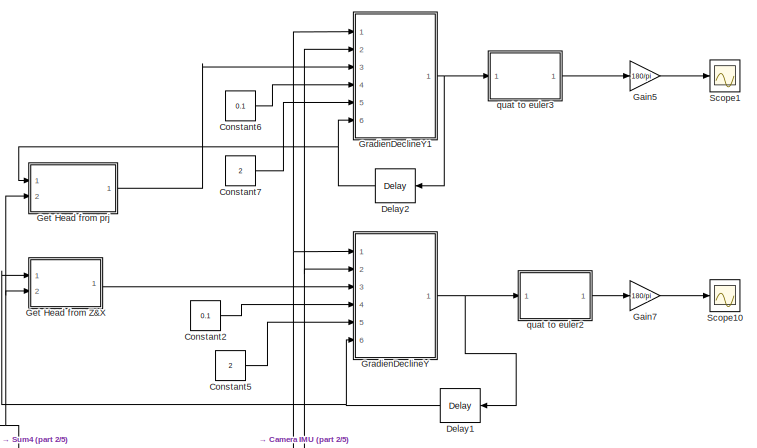
[diagram: root canvas - part 1/5, top center region]
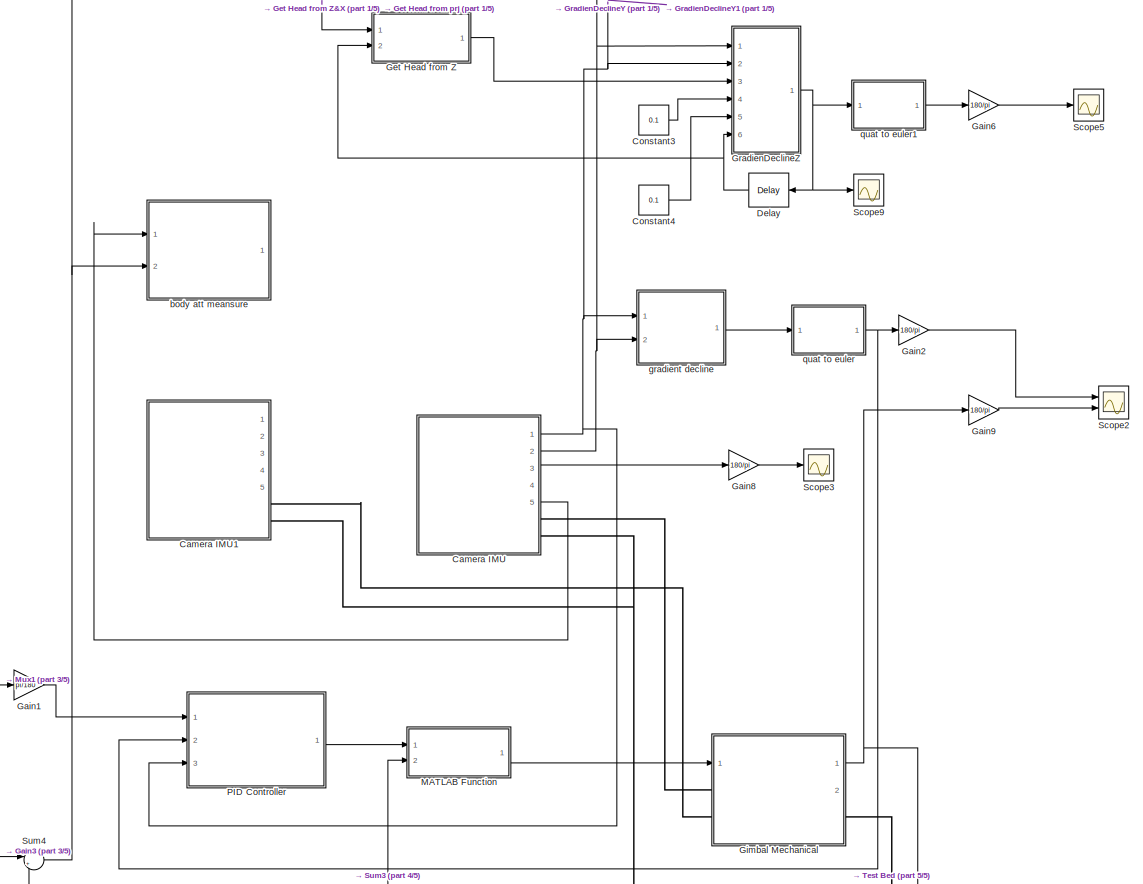
[diagram: root canvas - part 2/5, full width, middle band]
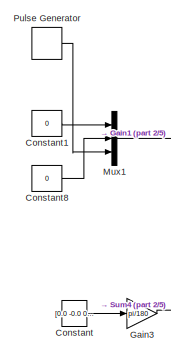
[diagram: root canvas - part 3/5, middle left region]
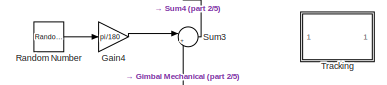
[diagram: root canvas - part 4/5, bottom left region]
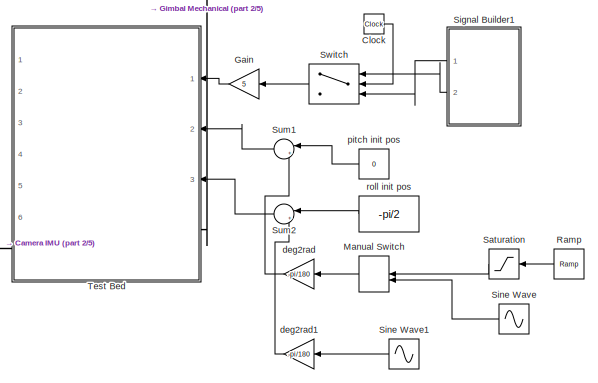
[diagram: root canvas - part 5/5, bottom right region]
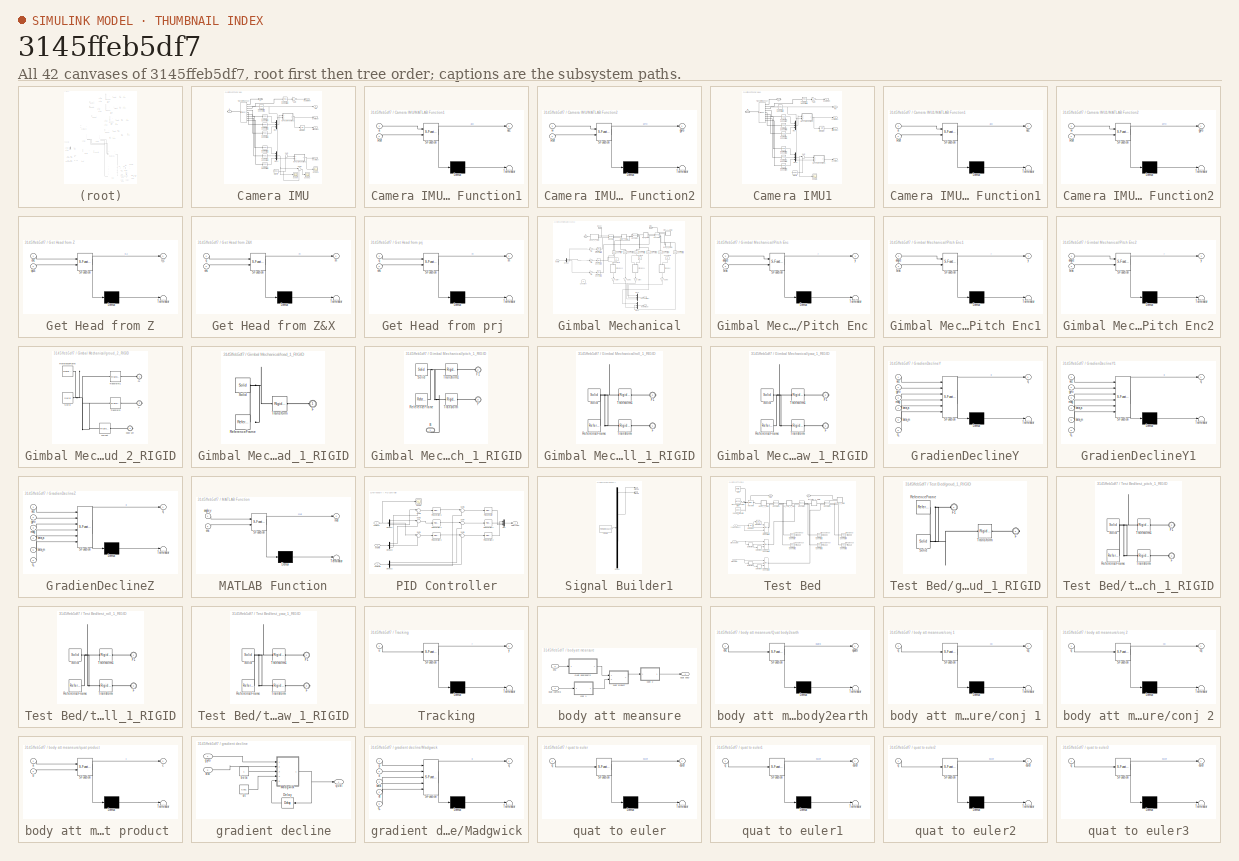
[diagram: thumbnail index - all 42 canvases of the model, root first then tree order]
MODEL slx_3145ffeb5df7
KIND model
CONFIG AbsTol = auto
CONFIG EnableMultiTasking = on
CONFIG FixedStep = 0.001
CONFIG MaxStep = auto
CONFIG MinStep = auto
CONFIG RelTol = 1e-3
CONFIG SampleTimeConstraint = Unconstrained
CONFIG Solver = ode14x
CONFIG SolverName = ode14x
CONFIG StartTime = 0.0
CONFIG StopTime = 20
BLOCK [SubSystem] Camera IMU
  Ports = [0, 5, 0, 0, 0, 0, 2]
  RequestExecContextInheritance = off
  Variant = off
BLOCK [PMIOPort] Camera IMU/B
  Port = 2
  Side = Right
BLOCK [PMIOPort] Camera IMU/F
  Port = 1
  Side = Right
BLOCK [Gain] Camera IMU/Gain
  Gain = -1
  OutDataTypeStr = Inherit: Inherit via internal rule
  ParamDataTypeStr = Inherit: Inherit via internal rule
  SaturateOnIntegerOverflow = off
BLOCK [Integrator] Camera IMU/Integrator
  Ports = [1, 1]
BLOCK [SubSystem] Camera IMU/MATLAB Function1
  ErrorFcn = Stateflow.Translate.translate
  PermitHierarchicalResolution = ExplicitOnly
  Ports = [2, 1]
  RequestExecContextInheritance = off
  SFBlockType = MATLAB Function
  TreatAsAtomicUnit = on
  Variant = off
BLOCK [Demux] Camera IMU/MATLAB Function1/ Demux 
  Outputs = 1
  Ports = [1, 1]
BLOCK [S-Function] Camera IMU/MATLAB Function1/ SFunction 
  EnableBusSupport = on
  FunctionName = sf_sfun
  PortCounts = [2 2]
  Ports = [2, 2]
  SFcnIsStateOwnerBlock = off
  SFunctionDeploymentMode = off
  Tag = Stateflow S-Function gimbal_test_2017_11_24 13
BLOCK [Terminator] Camera IMU/MATLAB Function1/ Terminator 
BLOCK [Inport] Camera IMU/MATLAB Function1/RM
  IconDisplay = Port number
  Port = 2
BLOCK [Inport] Camera IMU/MATLAB Function1/a
  IconDisplay = Port number
BLOCK [Outport] Camera IMU/MATLAB Function1/acc
  IconDisplay = Port number
BLOCK [SubSystem] Camera IMU/MATLAB Function2
  ErrorFcn = Stateflow.Translate.translate
  PermitHierarchicalResolution = ExplicitOnly
  Ports = [2, 1]
  RequestExecContextInheritance = off
  SFBlockType = MATLAB Function
  TreatAsAtomicUnit = on
  Variant = off
BLOCK [Demux] Camera IMU/MATLAB Function2/ Demux 
  Outputs = 1
  Ports = [1, 1]
BLOCK [S-Function] Camera IMU/MATLAB Function2/ SFunction 
  EnableBusSupport = on
  FunctionName = sf_sfun
  PortCounts = [2 2]
  Ports = [2, 2]
  SFcnIsStateOwnerBlock = off
  SFunctionDeploymentMode = off
  Tag = Stateflow S-Function gimbal_test_2017_11_24 11
BLOCK [Terminator] Camera IMU/MATLAB Function2/ Terminator 
BLOCK [Inport] Camera IMU/MATLAB Function2/RM
  IconDisplay = Port number
  Port = 2
BLOCK [Outport] Camera IMU/MATLAB Function2/gyro
  IconDisplay = Port number
BLOCK [Inport] Camera IMU/MATLAB Function2/w
  IconDisplay = Port number
BLOCK [Mux] Camera IMU/Mux
  DisplayOption = bar
  Inputs = 3
  Ports = [3, 1]
BLOCK [Mux] Camera IMU/Mux1
  DisplayOption = bar
  Inputs = 3
  Ports = [3, 1]
BLOCK [Reference] Camera IMU/PS-Simulink Converter1  REF=nesl_utility/PS-Simulink
Converter
  Ports = [0, 1, 0, 0, 0, 1]
  SourceBlock = nesl_utility/PS-Simulink\nConverter
  SourceProductBaseCode = SS
  SourceProductName = Simscape
  SourceType = PS-Simulink\nConverter
BLOCK [Reference] Camera IMU/PS-Simulink Converter2  REF=nesl_utility/PS-Simulink
Converter
  Ports = [0, 1, 0, 0, 0, 1]
  SourceBlock = nesl_utility/PS-Simulink\nConverter
  SourceProductBaseCode = SS
  SourceProductName = Simscape
  SourceType = PS-Simulink\nConverter
BLOCK [Reference] Camera IMU/PS-Simulink Converter3  REF=nesl_utility/PS-Simulink
Converter
  Ports = [0, 1, 0, 0, 0, 1]
  SourceBlock = nesl_utility/PS-Simulink\nConverter
  SourceProductBaseCode = SS
  SourceProductName = Simscape
  SourceType = PS-Simulink\nConverter
BLOCK [Reference] Camera IMU/PS-Simulink Converter4  REF=nesl_utility/PS-Simulink
Converter
  Ports = [0, 1, 0, 0, 0, 1]
  SourceBlock = nesl_utility/PS-Simulink\nConverter
  SourceProductBaseCode = SS
  SourceProductName = Simscape
  SourceType = PS-Simulink\nConverter
BLOCK [Reference] Camera IMU/PS-Simulink Converter6  REF=nesl_utility/PS-Simulink
Converter
  Ports = [0, 1, 0, 0, 0, 1]
  SourceBlock = nesl_utility/PS-Simulink\nConverter
  SourceProductBaseCode = SS
  SourceProductName = Simscape
  SourceType = PS-Simulink\nConverter
BLOCK [Reference] Camera IMU/PS-Simulink Converter7  REF=nesl_utility/PS-Simulink
Converter
  Ports = [0, 1, 0, 0, 0, 1]
  SourceBlock = nesl_utility/PS-Simulink\nConverter
  SourceProductBaseCode = SS
  SourceProductName = Simscape
  SourceType = PS-Simulink\nConverter
BLOCK [Reference] Camera IMU/PS-Simulink Converter8  REF=nesl_utility/PS-Simulink
Converter
  Ports = [0, 1, 0, 0, 0, 1]
  SourceBlock = nesl_utility/PS-Simulink\nConverter
  SourceProductBaseCode = SS
  SourceProductName = Simscape
  SourceType = PS-Simulink\nConverter
BLOCK [Reference] Camera IMU/PS-Simulink Converter9  REF=nesl_utility/PS-Simulink
Converter
  Ports = [0, 1, 0, 0, 0, 1]
  SourceBlock = nesl_utility/PS-Simulink\nConverter
  SourceProductBaseCode = SS
  SourceProductName = Simscape
  SourceType = PS-Simulink\nConverter
BLOCK [Outport] Camera IMU/RM
  IconDisplay = Port number
  Port = 4
BLOCK [Scope] Camera IMU/Scope
  NumInputPorts = 1
  Ports = [1]
  ScopeSpecificationString = Simulink.scopes.TimeScopeBlockCfg('CurrentConfiguration', extmgr.ConfigurationSet(extmgr.Configuration('Core','General UI',true),extmgr.Configuration('Core','Source UI',true),extmgr.Configuration('Sources','WiredSimulink',true,'DataLoggingVariableName','ScopeData2'),extmgr.Configuration('Visuals','Time Domain',true,'SerializedDisplays',{struct('MinYLimReal','-62.38144','MaxYLimReal','40.43998','YL...<+1485ch>
BLOCK [Scope] Camera IMU/Scope1
  NumInputPorts = 1
  Ports = [1]
  ScopeSpecificationString = Simulink.scopes.TimeScopeBlockCfg('CurrentConfiguration', extmgr.ConfigurationSet(extmgr.Configuration('Core','General UI',true),extmgr.Configuration('Core','Source UI',true),extmgr.Configuration('Sources','WiredSimulink',true,'DataLoggingVariableName','ScopeData5'),extmgr.Configuration('Visuals','Time Domain',true,'SerializedDisplays',{struct('MinYLimReal','-11.33628','MaxYLimReal','3.92654','YLa...<+1471ch>
BLOCK [Scope] Camera IMU/Scope2
  NumInputPorts = 1
  Ports = [1]
  ScopeSpecificationString = Simulink.scopes.TimeScopeBlockCfg('CurrentConfiguration', extmgr.ConfigurationSet(extmgr.Configuration('Core','General UI',true),extmgr.Configuration('Core','Source UI',true),extmgr.Configuration('Sources','WiredSimulink',true,'DataLoggingVariableName','ScopeData6'),extmgr.Configuration('Visuals','Time Domain',true,'SerializedDisplays',{struct('MinYLimReal','-22.29282','MaxYLimReal','8.50216','YLa...<+1435ch>
BLOCK [Sum] Camera IMU/Sum
  IconShape = round
  InputSameDT = off
  Inputs = |++
  OutDataTypeStr = Inherit: Inherit via internal rule
  Ports = [2, 1]
  SaturateOnIntegerOverflow = off
BLOCK [Sum] Camera IMU/Sum1
  IconShape = round
  InputSameDT = off
  Inputs = |++
  OutDataTypeStr = Inherit: Inherit via internal rule
  Ports = [2, 1]
  SaturateOnIntegerOverflow = off
BLOCK [Reference] Camera IMU/Transform Sensor  REF=sm_lib/Frames and
Transforms/Transform
Sensor
  Ports = [0, 0, 0, 0, 0, 1, 9]
  SourceBlock = sm_lib/Frames and\nTransforms/Transform\nSensor
  SourceProductBaseCode = MS
  SourceProductName = Simscape Multibody
  SourceType = Transform\nSensor
BLOCK [Outport] Camera IMU/acc (m//ss)
  IconDisplay = Port number
  Port = 2
BLOCK [Outport] Camera IMU/attitude (rad)
  IconDisplay = Port number
  Port = 3
BLOCK [Constant] Camera IMU/gravity 
  Value = [0 0 -9.81]
BLOCK [Outport] Camera IMU/gyro (rad//s)
  IconDisplay = Port number
BLOCK [Outport] Camera IMU/quaternion 
  IconDisplay = Port number
  Port = 5
BLOCK [SubSystem] Camera IMU1
  Ports = [0, 5, 0, 0, 0, 0, 2]
  RequestExecContextInheritance = off
  Variant = off
BLOCK [PMIOPort] Camera IMU1/B
  Port = 2
  Side = Right
BLOCK [PMIOPort] Camera IMU1/F
  Port = 1
  Side = Right
BLOCK [Gain] Camera IMU1/Gain
  Gain = -1
  OutDataTypeStr = Inherit: Inherit via internal rule
  ParamDataTypeStr = Inherit: Inherit via internal rule
  SaturateOnIntegerOverflow = off
BLOCK [Integrator] Camera IMU1/Integrator
  Ports = [1, 1]
BLOCK [SubSystem] Camera IMU1/MATLAB Function1
  ErrorFcn = Stateflow.Translate.translate
  PermitHierarchicalResolution = ExplicitOnly
  Ports = [2, 1]
  RequestExecContextInheritance = off
  SFBlockType = MATLAB Function
  TreatAsAtomicUnit = on
  Variant = off
BLOCK [Demux] Camera IMU1/MATLAB Function1/ Demux 
  Outputs = 1
  Ports = [1, 1]
BLOCK [S-Function] Camera IMU1/MATLAB Function1/ SFunction 
  EnableBusSupport = on
  FunctionName = sf_sfun
  PortCounts = [2 2]
  Ports = [2, 2]
  SFcnIsStateOwnerBlock = off
  SFunctionDeploymentMode = off
  Tag = Stateflow S-Function gimbal_test_2017_11_24 14
BLOCK [Terminator] Camera IMU1/MATLAB Function1/ Terminator 
BLOCK [Inport] Camera IMU1/MATLAB Function1/RM
  IconDisplay = Port number
  Port = 2
BLOCK [Inport] Camera IMU1/MATLAB Function1/a
  IconDisplay = Port number
BLOCK [Outport] Camera IMU1/MATLAB Function1/acc
  IconDisplay = Port number
BLOCK [SubSystem] Camera IMU1/MATLAB Function2
  ErrorFcn = Stateflow.Translate.translate
  PermitHierarchicalResolution = ExplicitOnly
  Ports = [2, 1]
  RequestExecContextInheritance = off
  SFBlockType = MATLAB Function
  TreatAsAtomicUnit = on
  Variant = off
BLOCK [Demux] Camera IMU1/MATLAB Function2/ Demux 
  Outputs = 1
  Ports = [1, 1]
BLOCK [S-Function] Camera IMU1/MATLAB Function2/ SFunction 
  EnableBusSupport = on
  FunctionName = sf_sfun
  PortCounts = [2 2]
  Ports = [2, 2]
  SFcnIsStateOwnerBlock = off
  SFunctionDeploymentMode = off
  Tag = Stateflow S-Function gimbal_test_2017_11_24 18
BLOCK [Terminator] Camera IMU1/MATLAB Function2/ Terminator 
BLOCK [Inport] Camera IMU1/MATLAB Function2/RM
  IconDisplay = Port number
  Port = 2
BLOCK [Outport] Camera IMU1/MATLAB Function2/gyro
  IconDisplay = Port number
BLOCK [Inport] Camera IMU1/MATLAB Function2/w
  IconDisplay = Port number
BLOCK [Mux] Camera IMU1/Mux
  DisplayOption = bar
  Inputs = 3
  Ports = [3, 1]
BLOCK [Mux] Camera IMU1/Mux1
  DisplayOption = bar
  Inputs = 3
  Ports = [3, 1]
BLOCK [Reference] Camera IMU1/PS-Simulink Converter1  REF=nesl_utility/PS-Simulink
Converter
  Ports = [0, 1, 0, 0, 0, 1]
  SourceBlock = nesl_utility/PS-Simulink\nConverter
  SourceProductBaseCode = SS
  SourceProductName = Simscape
  SourceType = PS-Simulink\nConverter
BLOCK [Reference] Camera IMU1/PS-Simulink Converter2  REF=nesl_utility/PS-Simulink
Converter
  Ports = [0, 1, 0, 0, 0, 1]
  SourceBlock = nesl_utility/PS-Simulink\nConverter
  SourceProductBaseCode = SS
  SourceProductName = Simscape
  SourceType = PS-Simulink\nConverter
BLOCK [Reference] Camera IMU1/PS-Simulink Converter3  REF=nesl_utility/PS-Simulink
Converter
  Ports = [0, 1, 0, 0, 0, 1]
  SourceBlock = nesl_utility/PS-Simulink\nConverter
  SourceProductBaseCode = SS
  SourceProductName = Simscape
  SourceType = PS-Simulink\nConverter
BLOCK [Reference] Camera IMU1/PS-Simulink Converter4  REF=nesl_utility/PS-Simulink
Converter
  Ports = [0, 1, 0, 0, 0, 1]
  SourceBlock = nesl_utility/PS-Simulink\nConverter
  SourceProductBaseCode = SS
  SourceProductName = Simscape
  SourceType = PS-Simulink\nConverter
BLOCK [Reference] Camera IMU1/PS-Simulink Converter6  REF=nesl_utility/PS-Simulink
Converter
  Ports = [0, 1, 0, 0, 0, 1]
  SourceBlock = nesl_utility/PS-Simulink\nConverter
  SourceProductBaseCode = SS
  SourceProductName = Simscape
  SourceType = PS-Simulink\nConverter
BLOCK [Reference] Camera IMU1/PS-Simulink Converter7  REF=nesl_utility/PS-Simulink
Converter
  Ports = [0, 1, 0, 0, 0, 1]
  SourceBlock = nesl_utility/PS-Simulink\nConverter
  SourceProductBaseCode = SS
  SourceProductName = Simscape
  SourceType = PS-Simulink\nConverter
BLOCK [Reference] Camera IMU1/PS-Simulink Converter8  REF=nesl_utility/PS-Simulink
Converter
  Ports = [0, 1, 0, 0, 0, 1]
  SourceBlock = nesl_utility/PS-Simulink\nConverter
  SourceProductBaseCode = SS
  SourceProductName = Simscape
  SourceType = PS-Simulink\nConverter
BLOCK [Reference] Camera IMU1/PS-Simulink Converter9  REF=nesl_utility/PS-Simulink
Converter
  Ports = [0, 1, 0, 0, 0, 1]
  SourceBlock = nesl_utility/PS-Simulink\nConverter
  SourceProductBaseCode = SS
  SourceProductName = Simscape
  SourceType = PS-Simulink\nConverter
BLOCK [Outport] Camera IMU1/RM
  IconDisplay = Port number
  Port = 4
BLOCK [Scope] Camera IMU1/Scope
  NumInputPorts = 1
  Ports = [1]
  ScopeSpecificationString = Simulink.scopes.TimeScopeBlockCfg('CurrentConfiguration', extmgr.ConfigurationSet(extmgr.Configuration('Core','General UI',true),extmgr.Configuration('Core','Source UI',true),extmgr.Configuration('Sources','WiredSimulink',true,'DataLoggingVariableName','ScopeData2'),extmgr.Configuration('Visuals','Time Domain',true,'SerializedDisplays',{struct('MinYLimReal','-28.38225','MaxYLimReal','17.86577','YL...<+1485ch>
BLOCK [Sum] Camera IMU1/Sum
  IconShape = round
  InputSameDT = off
  Inputs = |++
  OutDataTypeStr = Inherit: Inherit via internal rule
  Ports = [2, 1]
  SaturateOnIntegerOverflow = off
BLOCK [Reference] Camera IMU1/Transform Sensor  REF=sm_lib/Frames and
Transforms/Transform
Sensor
  Ports = [0, 0, 0, 0, 0, 1, 9]
  SourceBlock = sm_lib/Frames and\nTransforms/Transform\nSensor
  SourceProductBaseCode = MS
  SourceProductName = Simscape Multibody
  SourceType = Transform\nSensor
BLOCK [Outport] Camera IMU1/acc (m//ss)
  IconDisplay = Port number
  Port = 2
BLOCK [Outport] Camera IMU1/attitude (rad)
  IconDisplay = Port number
  Port = 3
BLOCK [Constant] Camera IMU1/gravity 
  Value = [0 0 9.81]
BLOCK [Outport] Camera IMU1/gyro (rad//s)
  IconDisplay = Port number
BLOCK [Outport] Camera IMU1/quaternion 
  IconDisplay = Port number
  Port = 5
BLOCK [Clock] Clock
BLOCK [Constant] Constant
  Value = [0.0 -0.0 0.0]
BLOCK [Constant] Constant1
  Value = 0
BLOCK [Constant] Constant2
  Value = 0.1
BLOCK [Constant] Constant3
  Value = 0.1
BLOCK [Constant] Constant4
  Value = 0.1
BLOCK [Constant] Constant5
  Value = 2
BLOCK [Constant] Constant6
  Value = 0.1
BLOCK [Constant] Constant7
  Value = 2
BLOCK [Constant] Constant8
  Value = 0
BLOCK [Delay] Delay
  DelayLength = 1
  InitialCondition = [1;0;0;0]
  InputPortMap = u0
  Ports = [1, 1]
BLOCK [Delay] Delay1
  DelayLength = 1
  InitialCondition = [1;0;0;0]
  InputPortMap = u0
  Ports = [1, 1]
BLOCK [Delay] Delay2
  DelayLength = 1
  InitialCondition = [1;0;0;0]
  InputPortMap = u0
  Ports = [1, 1]
BLOCK [Gain] Gain
  Gain = 5
  OutDataTypeStr = Inherit: Inherit via internal rule
  ParamDataTypeStr = Inherit: Inherit via internal rule
  SaturateOnIntegerOverflow = off
BLOCK [Gain] Gain1
  Gain = pi/180
  OutDataTypeStr = Inherit: Inherit via internal rule
  ParamDataTypeStr = Inherit: Inherit via internal rule
  SaturateOnIntegerOverflow = off
BLOCK [Gain] Gain2
  Gain = 180/pi
  OutDataTypeStr = Inherit: Inherit via internal rule
  ParamDataTypeStr = Inherit: Inherit via internal rule
  SaturateOnIntegerOverflow = off
BLOCK [Gain] Gain3
  Gain = pi/180
  OutDataTypeStr = Inherit: Inherit via internal rule
  ParamDataTypeStr = Inherit: Inherit via internal rule
  SaturateOnIntegerOverflow = off
BLOCK [Gain] Gain4
  Gain = pi/180
  OutDataTypeStr = Inherit: Inherit via internal rule
  ParamDataTypeStr = Inherit: Inherit via internal rule
  SaturateOnIntegerOverflow = off
BLOCK [Gain] Gain5
  Gain = 180/pi
  OutDataTypeStr = Inherit: Inherit via internal rule
  ParamDataTypeStr = Inherit: Inherit via internal rule
  SaturateOnIntegerOverflow = off
BLOCK [Gain] Gain6
  Gain = 180/pi
  OutDataTypeStr = Inherit: Inherit via internal rule
  ParamDataTypeStr = Inherit: Inherit via internal rule
  SaturateOnIntegerOverflow = off
BLOCK [Gain] Gain7
  Gain = 180/pi
  OutDataTypeStr = Inherit: Inherit via internal rule
  ParamDataTypeStr = Inherit: Inherit via internal rule
  SaturateOnIntegerOverflow = off
BLOCK [Gain] Gain8
  Gain = 180/pi
  OutDataTypeStr = Inherit: Inherit via internal rule
  ParamDataTypeStr = Inherit: Inherit via internal rule
  SaturateOnIntegerOverflow = off
BLOCK [Gain] Gain9
  Gain = 180/pi
  OutDataTypeStr = Inherit: Inherit via internal rule
  ParamDataTypeStr = Inherit: Inherit via internal rule
  SaturateOnIntegerOverflow = off
BLOCK [SubSystem] Get Head from Z
  ErrorFcn = Stateflow.Translate.translate
  PermitHierarchicalResolution = ExplicitOnly
  Ports = [2, 1]
  RequestExecContextInheritance = off
  SFBlockType = MATLAB Function
  TreatAsAtomicUnit = on
  Variant = off
BLOCK [SubSystem] Get Head from Z&X
  ErrorFcn = Stateflow.Translate.translate
  PermitHierarchicalResolution = ExplicitOnly
  Ports = [2, 1]
  RequestExecContextInheritance = off
  SFBlockType = MATLAB Function
  TreatAsAtomicUnit = on
  Variant = off
BLOCK [Demux] Get Head from Z&X/ Demux 
  Outputs = 1
  Ports = [1, 1]
BLOCK [S-Function] Get Head from Z&X/ SFunction 
  EnableBusSupport = on
  FunctionName = sf_sfun
  PortCounts = [2 2]
  Ports = [2, 2]
  SFcnIsStateOwnerBlock = off
  SFunctionDeploymentMode = off
  Tag = Stateflow S-Function gimbal_test_2017_11_24 22
BLOCK [Terminator] Get Head from Z&X/ Terminator 
BLOCK [Inport] Get Head from Z&X/enc
  IconDisplay = Port number
  Port = 2
BLOCK [Outport] Get Head from Z&X/m
  IconDisplay = Port number
BLOCK [Inport] Get Head from Z&X/q
  IconDisplay = Port number
BLOCK [Demux] Get Head from Z/ Demux 
  Outputs = 1
  Ports = [1, 1]
BLOCK [S-Function] Get Head from Z/ SFunction 
  EnableBusSupport = on
  FunctionName = sf_sfun
  PortCounts = [2 2]
  Ports = [2, 2]
  SFcnIsStateOwnerBlock = off
  SFunctionDeploymentMode = off
  Tag = Stateflow S-Function gimbal_test_2017_11_24 12
BLOCK [Terminator] Get Head from Z/ Terminator 
BLOCK [Inport] Get Head from Z/enc
  IconDisplay = Port number
BLOCK [Outport] Get Head from Z/n_c
  IconDisplay = Port number
BLOCK [Inport] Get Head from Z/qe2c
  IconDisplay = Port number
  Port = 2
BLOCK [SubSystem] Get Head from prj 
  ErrorFcn = Stateflow.Translate.translate
  PermitHierarchicalResolution = ExplicitOnly
  Ports = [2, 1]
  RequestExecContextInheritance = off
  SFBlockType = MATLAB Function
  TreatAsAtomicUnit = on
  Variant = off
BLOCK [Demux] Get Head from prj / Demux 
  Outputs = 1
  Ports = [1, 1]
BLOCK [S-Function] Get Head from prj / SFunction 
  EnableBusSupport = on
  FunctionName = sf_sfun
  PortCounts = [2 2]
  Ports = [2, 2]
  SFcnIsStateOwnerBlock = off
  SFunctionDeploymentMode = off
  Tag = Stateflow S-Function gimbal_test_2017_11_24 21
BLOCK [Terminator] Get Head from prj / Terminator 
BLOCK [Inport] Get Head from prj /enc
  IconDisplay = Port number
  Port = 2
BLOCK [Outport] Get Head from prj /m
  IconDisplay = Port number
BLOCK [Inport] Get Head from prj /q
  IconDisplay = Port number
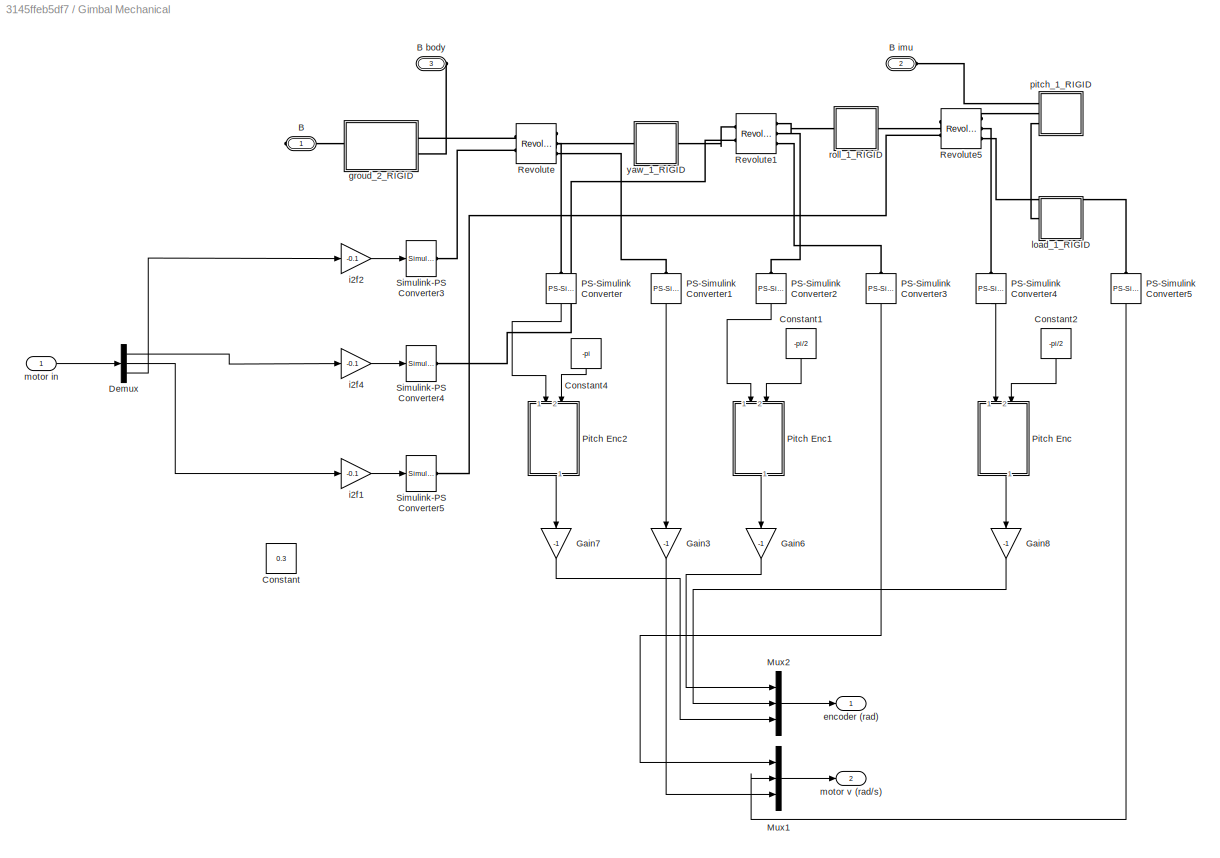
BLOCK [SubSystem] Gimbal Mechanical
  Ports = [1, 2, 0, 0, 0, 2, 1]
  RequestExecContextInheritance = off
  Variant = off
BLOCK [PMIOPort] Gimbal Mechanical/B
  Port = 1
  Side = Right
BLOCK [PMIOPort] Gimbal Mechanical/B body
  Port = 3
  Side = Left
BLOCK [PMIOPort] Gimbal Mechanical/B imu
  Port = 2
  Side = Left
BLOCK [Constant] Gimbal Mechanical/Constant
  Value = 0.3
BLOCK [Constant] Gimbal Mechanical/Constant1
  Value = -pi/2
BLOCK [Constant] Gimbal Mechanical/Constant2
  Value = -pi/2
BLOCK [Constant] Gimbal Mechanical/Constant4
  Value = -pi
BLOCK [Demux] Gimbal Mechanical/Demux
  DisplayOption = bar
  Outputs = 3
  Ports = [1, 3]
BLOCK [Gain] Gimbal Mechanical/Gain3
  Gain = -1
  OutDataTypeStr = Inherit: Inherit via internal rule
  ParamDataTypeStr = Inherit: Inherit via internal rule
  SaturateOnIntegerOverflow = off
BLOCK [Gain] Gimbal Mechanical/Gain6
  Gain = -1
  OutDataTypeStr = Inherit: Inherit via internal rule
  ParamDataTypeStr = Inherit: Inherit via internal rule
  SaturateOnIntegerOverflow = off
BLOCK [Gain] Gimbal Mechanical/Gain7
  Gain = -1
  OutDataTypeStr = Inherit: Inherit via internal rule
  ParamDataTypeStr = Inherit: Inherit via internal rule
  SaturateOnIntegerOverflow = off
BLOCK [Gain] Gimbal Mechanical/Gain8
  Gain = -1
  OutDataTypeStr = Inherit: Inherit via internal rule
  ParamDataTypeStr = Inherit: Inherit via internal rule
  SaturateOnIntegerOverflow = off
BLOCK [Mux] Gimbal Mechanical/Mux1
  DisplayOption = bar
  Inputs = 3
  Ports = [3, 1]
BLOCK [Mux] Gimbal Mechanical/Mux2
  DisplayOption = bar
  Inputs = 3
  Ports = [3, 1]
BLOCK [Reference] Gimbal Mechanical/PS-Simulink Converter  REF=nesl_utility/PS-Simulink
Converter
  Ports = [0, 1, 0, 0, 0, 1]
  SourceBlock = nesl_utility/PS-Simulink\nConverter
  SourceProductBaseCode = SS
  SourceProductName = Simscape
  SourceType = PS-Simulink\nConverter
BLOCK [Reference] Gimbal Mechanical/PS-Simulink Converter1  REF=nesl_utility/PS-Simulink
Converter
  Ports = [0, 1, 0, 0, 0, 1]
  SourceBlock = nesl_utility/PS-Simulink\nConverter
  SourceProductBaseCode = SS
  SourceProductName = Simscape
  SourceType = PS-Simulink\nConverter
BLOCK [Reference] Gimbal Mechanical/PS-Simulink Converter2  REF=nesl_utility/PS-Simulink
Converter
  Ports = [0, 1, 0, 0, 0, 1]
  SourceBlock = nesl_utility/PS-Simulink\nConverter
  SourceProductBaseCode = SS
  SourceProductName = Simscape
  SourceType = PS-Simulink\nConverter
BLOCK [Reference] Gimbal Mechanical/PS-Simulink Converter3  REF=nesl_utility/PS-Simulink
Converter
  Ports = [0, 1, 0, 0, 0, 1]
  SourceBlock = nesl_utility/PS-Simulink\nConverter
  SourceProductBaseCode = SS
  SourceProductName = Simscape
  SourceType = PS-Simulink\nConverter
BLOCK [Reference] Gimbal Mechanical/PS-Simulink Converter4  REF=nesl_utility/PS-Simulink
Converter
  Ports = [0, 1, 0, 0, 0, 1]
  SourceBlock = nesl_utility/PS-Simulink\nConverter
  SourceProductBaseCode = SS
  SourceProductName = Simscape
  SourceType = PS-Simulink\nConverter
BLOCK [Reference] Gimbal Mechanical/PS-Simulink Converter5  REF=nesl_utility/PS-Simulink
Converter
  Ports = [0, 1, 0, 0, 0, 1]
  SourceBlock = nesl_utility/PS-Simulink\nConverter
  SourceProductBaseCode = SS
  SourceProductName = Simscape
  SourceType = PS-Simulink\nConverter
BLOCK [SubSystem] Gimbal Mechanical/Pitch Enc
  ErrorFcn = Stateflow.Translate.translate
  PermitHierarchicalResolution = ExplicitOnly
  Ports = [2, 1]
  RequestExecContextInheritance = off
  SFBlockType = MATLAB Function
  TreatAsAtomicUnit = on
  Variant = off
BLOCK [Demux] Gimbal Mechanical/Pitch Enc/ Demux 
  Outputs = 1
  Ports = [1, 1]
BLOCK [S-Function] Gimbal Mechanical/Pitch Enc/ SFunction 
  EnableBusSupport = on
  FunctionName = sf_sfun
  PortCounts = [2 2]
  Ports = [2, 2]
  SFcnIsStateOwnerBlock = off
  SFunctionDeploymentMode = off
  Tag = Stateflow S-Function gimbal_test_2017_11_24 4
BLOCK [Terminator] Gimbal Mechanical/Pitch Enc/ Terminator 
BLOCK [Inport] Gimbal Mechanical/Pitch Enc/angle
  IconDisplay = Port number
BLOCK [Inport] Gimbal Mechanical/Pitch Enc/bias
  IconDisplay = Port number
  Port = 2
BLOCK [Outport] Gimbal Mechanical/Pitch Enc/y
  IconDisplay = Port number
BLOCK [SubSystem] Gimbal Mechanical/Pitch Enc1
  ErrorFcn = Stateflow.Translate.translate
  PermitHierarchicalResolution = ExplicitOnly
  Ports = [2, 1]
  RequestExecContextInheritance = off
  SFBlockType = MATLAB Function
  TreatAsAtomicUnit = on
  Variant = off
BLOCK [Demux] Gimbal Mechanical/Pitch Enc1/ Demux 
  Outputs = 1
  Ports = [1, 1]
BLOCK [S-Function] Gimbal Mechanical/Pitch Enc1/ SFunction 
  EnableBusSupport = on
  FunctionName = sf_sfun
  PortCounts = [2 2]
  Ports = [2, 2]
  SFcnIsStateOwnerBlock = off
  SFunctionDeploymentMode = off
  Tag = Stateflow S-Function gimbal_test_2017_11_24 5
BLOCK [Terminator] Gimbal Mechanical/Pitch Enc1/ Terminator 
BLOCK [Inport] Gimbal Mechanical/Pitch Enc1/angle
  IconDisplay = Port number
BLOCK [Inport] Gimbal Mechanical/Pitch Enc1/bias
  IconDisplay = Port number
  Port = 2
BLOCK [Outport] Gimbal Mechanical/Pitch Enc1/y
  IconDisplay = Port number
BLOCK [SubSystem] Gimbal Mechanical/Pitch Enc2
  ErrorFcn = Stateflow.Translate.translate
  PermitHierarchicalResolution = ExplicitOnly
  Ports = [2, 1]
  RequestExecContextInheritance = off
  SFBlockType = MATLAB Function
  TreatAsAtomicUnit = on
  Variant = off
BLOCK [Demux] Gimbal Mechanical/Pitch Enc2/ Demux 
  Outputs = 1
  Ports = [1, 1]
BLOCK [S-Function] Gimbal Mechanical/Pitch Enc2/ SFunction 
  EnableBusSupport = on
  FunctionName = sf_sfun
  PortCounts = [2 2]
  Ports = [2, 2]
  SFcnIsStateOwnerBlock = off
  SFunctionDeploymentMode = off
  Tag = Stateflow S-Function gimbal_test_2017_11_24 6
BLOCK [Terminator] Gimbal Mechanical/Pitch Enc2/ Terminator 
BLOCK [Inport] Gimbal Mechanical/Pitch Enc2/angle
  IconDisplay = Port number
BLOCK [Inport] Gimbal Mechanical/Pitch Enc2/bias
  IconDisplay = Port number
  Port = 2
BLOCK [Outport] Gimbal Mechanical/Pitch Enc2/y
  IconDisplay = Port number
BLOCK [Reference] Gimbal Mechanical/Revolute  REF=sm_lib/Joints/Revolute Joint
  Ports = [0, 0, 0, 0, 0, 2, 3]
  SourceBlock = sm_lib/Joints/Revolute Joint
  SourceProductBaseCode = MS
  SourceProductName = Simscape Multibody
  SourceType = Revolute Joint
BLOCK [Reference] Gimbal Mechanical/Revolute1  REF=sm_lib/Joints/Revolute Joint
  Ports = [0, 0, 0, 0, 0, 2, 3]
  SourceBlock = sm_lib/Joints/Revolute Joint
  SourceProductBaseCode = MS
  SourceProductName = Simscape Multibody
  SourceType = Revolute Joint
BLOCK [Reference] Gimbal Mechanical/Revolute5  REF=sm_lib/Joints/Revolute Joint
  Ports = [0, 0, 0, 0, 0, 2, 3]
  SourceBlock = sm_lib/Joints/Revolute Joint
  SourceProductBaseCode = MS
  SourceProductName = Simscape Multibody
  SourceType = Revolute Joint
BLOCK [Reference] Gimbal Mechanical/Simulink-PS Converter3  REF=nesl_utility/Simulink-PS
Converter
  Ports = [1, 0, 0, 0, 0, 0, 1]
  SourceBlock = nesl_utility/Simulink-PS\nConverter
  SourceProductBaseCode = SS
  SourceProductName = Simscape
  SourceType = Simulink-PS\nConverter
BLOCK [Reference] Gimbal Mechanical/Simulink-PS Converter4  REF=nesl_utility/Simulink-PS
Converter
  Ports = [1, 0, 0, 0, 0, 0, 1]
  SourceBlock = nesl_utility/Simulink-PS\nConverter
  SourceProductBaseCode = SS
  SourceProductName = Simscape
  SourceType = Simulink-PS\nConverter
BLOCK [Reference] Gimbal Mechanical/Simulink-PS Converter5  REF=nesl_utility/Simulink-PS
Converter
  Ports = [1, 0, 0, 0, 0, 0, 1]
  SourceBlock = nesl_utility/Simulink-PS\nConverter
  SourceProductBaseCode = SS
  SourceProductName = Simscape
  SourceType = Simulink-PS\nConverter
BLOCK [Outport] Gimbal Mechanical/encoder (rad)
  IconDisplay = Port number
BLOCK [SubSystem] Gimbal Mechanical/groud_2_RIGID
  Ports = [0, 0, 0, 0, 0, 1, 2]
  RequestExecContextInheritance = off
  Variant = off
BLOCK [PMIOPort] Gimbal Mechanical/groud_2_RIGID/F
  Port = 2
  Side = Right
BLOCK [PMIOPort] Gimbal Mechanical/groud_2_RIGID/F1
  Port = 1
  Side = Left
BLOCK [Reference] Gimbal Mechanical/groud_2_RIGID/ReferenceFrame  REF=sm_lib/Frames and
Transforms/Reference
Frame
  Ports = [0, 0, 0, 0, 0, 0, 1]
  SourceBlock = sm_lib/Frames and\nTransforms/Reference\nFrame
  SourceProductBaseCode = MS
  SourceProductName = Simscape Multibody
  SourceType = Reference\nFrame
BLOCK [Reference] Gimbal Mechanical/groud_2_RIGID/Solid  REF=sm_lib/Body Elements/Solid
  Ports = [0, 0, 0, 0, 0, 0, 1]
  SourceBlock = sm_lib/Body Elements/Solid
  SourceProductBaseCode = MS
  SourceProductName = Simscape Multibody
  SourceType = Solid
BLOCK [Reference] Gimbal Mechanical/groud_2_RIGID/Transform  REF=sm_lib/Frames and
Transforms/Rigid
Transform
  Ports = [0, 0, 0, 0, 0, 1, 1]
  SourceBlock = sm_lib/Frames and\nTransforms/Rigid\nTransform
  SourceProductBaseCode = MS
  SourceProductName = Simscape Multibody
  SourceType = Rigid\nTransform
BLOCK [Reference] Gimbal Mechanical/groud_2_RIGID/Transform1  REF=sm_lib/Frames and
Transforms/Rigid
Transform
  Ports = [0, 0, 0, 0, 0, 1, 1]
  SourceBlock = sm_lib/Frames and\nTransforms/Rigid\nTransform
  SourceProductBaseCode = MS
  SourceProductName = Simscape Multibody
  SourceType = Rigid\nTransform
BLOCK [PMIOPort] Gimbal Mechanical/groud_2_RIGID/body att 
  Port = 3
  Side = Right
BLOCK [Reference] Gimbal Mechanical/groud_2_RIGID/correct   REF=sm_lib/Frames and
Transforms/Rigid
Transform
  Ports = [0, 0, 0, 0, 0, 1, 1]
  SourceBlock = sm_lib/Frames and\nTransforms/Rigid\nTransform
  SourceProductBaseCode = MS
  SourceProductName = Simscape Multibody
  SourceType = Rigid\nTransform
BLOCK [Gain] Gimbal Mechanical/i2f1
  Gain = -0.1
  OutDataTypeStr = Inherit: Inherit via internal rule
  ParamDataTypeStr = Inherit: Inherit via internal rule
  SaturateOnIntegerOverflow = off
BLOCK [Gain] Gimbal Mechanical/i2f2
  Gain = -0.1
  OutDataTypeStr = Inherit: Inherit via internal rule
  ParamDataTypeStr = Inherit: Inherit via internal rule
  SaturateOnIntegerOverflow = off
BLOCK [Gain] Gimbal Mechanical/i2f4
  Gain = -0.1
  OutDataTypeStr = Inherit: Inherit via internal rule
  ParamDataTypeStr = Inherit: Inherit via internal rule
  SaturateOnIntegerOverflow = off
BLOCK [SubSystem] Gimbal Mechanical/load_1_RIGID
  Ports = [0, 0, 0, 0, 0, 1]
  RequestExecContextInheritance = off
  Variant = off
BLOCK [PMIOPort] Gimbal Mechanical/load_1_RIGID/F
  Port = 1
  Side = Left
BLOCK [Reference] Gimbal Mechanical/load_1_RIGID/ReferenceFrame  REF=sm_lib/Frames and
Transforms/Reference
Frame
  Ports = [0, 0, 0, 0, 0, 0, 1]
  SourceBlock = sm_lib/Frames and\nTransforms/Reference\nFrame
  SourceProductBaseCode = MS
  SourceProductName = Simscape Multibody
  SourceType = Reference\nFrame
BLOCK [Reference] Gimbal Mechanical/load_1_RIGID/Solid  REF=sm_lib/Body Elements/Solid
  Ports = [0, 0, 0, 0, 0, 0, 1]
  SourceBlock = sm_lib/Body Elements/Solid
  SourceProductBaseCode = MS
  SourceProductName = Simscape Multibody
  SourceType = Solid
BLOCK [Reference] Gimbal Mechanical/load_1_RIGID/Transform  REF=sm_lib/Frames and
Transforms/Rigid
Transform
  Ports = [0, 0, 0, 0, 0, 1, 1]
  SourceBlock = sm_lib/Frames and\nTransforms/Rigid\nTransform
  SourceProductBaseCode = MS
  SourceProductName = Simscape Multibody
  SourceType = Rigid\nTransform
BLOCK [Inport] Gimbal Mechanical/motor in
  IconDisplay = Port number
BLOCK [Outport] Gimbal Mechanical/motor v (rad//s)
  IconDisplay = Port number
  Port = 2
BLOCK [SubSystem] Gimbal Mechanical/pitch_1_RIGID
  Ports = [0, 0, 0, 0, 0, 3]
  RequestExecContextInheritance = off
  Variant = off
BLOCK [PMIOPort] Gimbal Mechanical/pitch_1_RIGID/B
  Port = 1
  Side = Left
BLOCK [PMIOPort] Gimbal Mechanical/pitch_1_RIGID/F
  Port = 3
  Side = Left
BLOCK [PMIOPort] Gimbal Mechanical/pitch_1_RIGID/F1
  Port = 2
  Side = Left
BLOCK [Reference] Gimbal Mechanical/pitch_1_RIGID/ReferenceFrame  REF=sm_lib/Frames and
Transforms/Reference
Frame
  Ports = [0, 0, 0, 0, 0, 0, 1]
  SourceBlock = sm_lib/Frames and\nTransforms/Reference\nFrame
  SourceProductBaseCode = MS
  SourceProductName = Simscape Multibody
  SourceType = Reference\nFrame
BLOCK [Reference] Gimbal Mechanical/pitch_1_RIGID/Solid  REF=sm_lib/Body Elements/Solid
  Ports = [0, 0, 0, 0, 0, 0, 1]
  SourceBlock = sm_lib/Body Elements/Solid
  SourceProductBaseCode = MS
  SourceProductName = Simscape Multibody
  SourceType = Solid
BLOCK [Reference] Gimbal Mechanical/pitch_1_RIGID/Transform  REF=sm_lib/Frames and
Transforms/Rigid
Transform
  Ports = [0, 0, 0, 0, 0, 1, 1]
  SourceBlock = sm_lib/Frames and\nTransforms/Rigid\nTransform
  SourceProductBaseCode = MS
  SourceProductName = Simscape Multibody
  SourceType = Rigid\nTransform
BLOCK [Reference] Gimbal Mechanical/pitch_1_RIGID/Transform1  REF=sm_lib/Frames and
Transforms/Rigid
Transform
  Ports = [0, 0, 0, 0, 0, 1, 1]
  SourceBlock = sm_lib/Frames and\nTransforms/Rigid\nTransform
  SourceProductBaseCode = MS
  SourceProductName = Simscape Multibody
  SourceType = Rigid\nTransform
BLOCK [SubSystem] Gimbal Mechanical/roll_1_RIGID
  Ports = [0, 0, 0, 0, 0, 1, 1]
  RequestExecContextInheritance = off
  Variant = off
BLOCK [PMIOPort] Gimbal Mechanical/roll_1_RIGID/F
  Port = 1
  Side = Left
BLOCK [PMIOPort] Gimbal Mechanical/roll_1_RIGID/F1
  Port = 2
  Side = Right
BLOCK [Reference] Gimbal Mechanical/roll_1_RIGID/ReferenceFrame  REF=sm_lib/Frames and
Transforms/Reference
Frame
  Ports = [0, 0, 0, 0, 0, 0, 1]
  SourceBlock = sm_lib/Frames and\nTransforms/Reference\nFrame
  SourceProductBaseCode = MS
  SourceProductName = Simscape Multibody
  SourceType = Reference\nFrame
BLOCK [Reference] Gimbal Mechanical/roll_1_RIGID/Solid  REF=sm_lib/Body Elements/Solid
  Ports = [0, 0, 0, 0, 0, 0, 1]
  SourceBlock = sm_lib/Body Elements/Solid
  SourceProductBaseCode = MS
  SourceProductName = Simscape Multibody
  SourceType = Solid
BLOCK [Reference] Gimbal Mechanical/roll_1_RIGID/Transform  REF=sm_lib/Frames and
Transforms/Rigid
Transform
  Ports = [0, 0, 0, 0, 0, 1, 1]
  SourceBlock = sm_lib/Frames and\nTransforms/Rigid\nTransform
  SourceProductBaseCode = MS
  SourceProductName = Simscape Multibody
  SourceType = Rigid\nTransform
BLOCK [Reference] Gimbal Mechanical/roll_1_RIGID/Transform1  REF=sm_lib/Frames and
Transforms/Rigid
Transform
  Ports = [0, 0, 0, 0, 0, 1, 1]
  SourceBlock = sm_lib/Frames and\nTransforms/Rigid\nTransform
  SourceProductBaseCode = MS
  SourceProductName = Simscape Multibody
  SourceType = Rigid\nTransform
BLOCK [SubSystem] Gimbal Mechanical/yaw_1_RIGID
  Ports = [0, 0, 0, 0, 0, 1, 1]
  RequestExecContextInheritance = off
  Variant = off
BLOCK [PMIOPort] Gimbal Mechanical/yaw_1_RIGID/F
  Port = 1
  Side = Left
BLOCK [PMIOPort] Gimbal Mechanical/yaw_1_RIGID/F1
  Port = 2
  Side = Right
BLOCK [Reference] Gimbal Mechanical/yaw_1_RIGID/ReferenceFrame  REF=sm_lib/Frames and
Transforms/Reference
Frame
  Ports = [0, 0, 0, 0, 0, 0, 1]
  SourceBlock = sm_lib/Frames and\nTransforms/Reference\nFrame
  SourceProductBaseCode = MS
  SourceProductName = Simscape Multibody
  SourceType = Reference\nFrame
BLOCK [Reference] Gimbal Mechanical/yaw_1_RIGID/Solid  REF=sm_lib/Body Elements/Solid
  Ports = [0, 0, 0, 0, 0, 0, 1]
  SourceBlock = sm_lib/Body Elements/Solid
  SourceProductBaseCode = MS
  SourceProductName = Simscape Multibody
  SourceType = Solid
BLOCK [Reference] Gimbal Mechanical/yaw_1_RIGID/Transform  REF=sm_lib/Frames and
Transforms/Rigid
Transform
  Ports = [0, 0, 0, 0, 0, 1, 1]
  SourceBlock = sm_lib/Frames and\nTransforms/Rigid\nTransform
  SourceProductBaseCode = MS
  SourceProductName = Simscape Multibody
  SourceType = Rigid\nTransform
BLOCK [Reference] Gimbal Mechanical/yaw_1_RIGID/Transform1  REF=sm_lib/Frames and
Transforms/Rigid
Transform
  Ports = [0, 0, 0, 0, 0, 1, 1]
  SourceBlock = sm_lib/Frames and\nTransforms/Rigid\nTransform
  SourceProductBaseCode = MS
  SourceProductName = Simscape Multibody
  SourceType = Rigid\nTransform
BLOCK [SubSystem] GradienDeclineY
  ErrorFcn = Stateflow.Translate.translate
  PermitHierarchicalResolution = ExplicitOnly
  Ports = [6, 1]
  RequestExecContextInheritance = off
  SFBlockType = MATLAB Function
  TreatAsAtomicUnit = on
  Variant = off
BLOCK [Demux] GradienDeclineY/ Demux 
  Outputs = 1
  Ports = [1, 1]
BLOCK [S-Function] GradienDeclineY/ SFunction 
  EnableBusSupport = on
  FunctionName = sf_sfun
  PortCounts = [6 2]
  Ports = [6, 2]
  SFcnIsStateOwnerBlock = off
  SFunctionDeploymentMode = off
  Tag = Stateflow S-Function gimbal_test_2017_11_24 9
BLOCK [Terminator] GradienDeclineY/ Terminator 
BLOCK [Inport] GradienDeclineY/acc
  IconDisplay = Port number
BLOCK [Inport] GradienDeclineY/beta_a
  IconDisplay = Port number
  Port = 4
BLOCK [Inport] GradienDeclineY/beta_m
  IconDisplay = Port number
  Port = 5
BLOCK [Inport] GradienDeclineY/gyro
  IconDisplay = Port number
  Port = 2
BLOCK [Inport] GradienDeclineY/mag
  IconDisplay = Port number
  Port = 3
BLOCK [Outport] GradienDeclineY/q
  IconDisplay = Port number
BLOCK [Inport] GradienDeclineY/q_
  IconDisplay = Port number
  Port = 6
BLOCK [SubSystem] GradienDeclineY1
  ErrorFcn = Stateflow.Translate.translate
  PermitHierarchicalResolution = ExplicitOnly
  Ports = [6, 1]
  RequestExecContextInheritance = off
  SFBlockType = MATLAB Function
  TreatAsAtomicUnit = on
  Variant = off
BLOCK [Demux] GradienDeclineY1/ Demux 
  Outputs = 1
  Ports = [1, 1]
BLOCK [S-Function] GradienDeclineY1/ SFunction 
  EnableBusSupport = on
  FunctionName = sf_sfun
  PortCounts = [6 2]
  Ports = [6, 2]
  SFcnIsStateOwnerBlock = off
  SFunctionDeploymentMode = off
  Tag = Stateflow S-Function gimbal_test_2017_11_24 23
BLOCK [Terminator] GradienDeclineY1/ Terminator 
BLOCK [Inport] GradienDeclineY1/acc
  IconDisplay = Port number
BLOCK [Inport] GradienDeclineY1/beta_a
  IconDisplay = Port number
  Port = 4
BLOCK [Inport] GradienDeclineY1/beta_m
  IconDisplay = Port number
  Port = 5
BLOCK [Inport] GradienDeclineY1/gyro
  IconDisplay = Port number
  Port = 2
BLOCK [Inport] GradienDeclineY1/mag
  IconDisplay = Port number
  Port = 3
BLOCK [Outport] GradienDeclineY1/q
  IconDisplay = Port number
BLOCK [Inport] GradienDeclineY1/q_
  IconDisplay = Port number
  Port = 6
BLOCK [SubSystem] GradienDeclineZ
  ErrorFcn = Stateflow.Translate.translate
  PermitHierarchicalResolution = ExplicitOnly
  Ports = [6, 1]
  RequestExecContextInheritance = off
  SFBlockType = MATLAB Function
  TreatAsAtomicUnit = on
  Variant = off
BLOCK [Demux] GradienDeclineZ/ Demux 
  Outputs = 1
  Ports = [1, 1]
BLOCK [S-Function] GradienDeclineZ/ SFunction 
  EnableBusSupport = on
  FunctionName = sf_sfun
  PortCounts = [6 2]
  Ports = [6, 2]
  SFcnIsStateOwnerBlock = off
  SFunctionDeploymentMode = off
  Tag = Stateflow S-Function gimbal_test_2017_11_24 7
BLOCK [Terminator] GradienDeclineZ/ Terminator 
BLOCK [Inport] GradienDeclineZ/acc
  IconDisplay = Port number
BLOCK [Inport] GradienDeclineZ/beta_a
  IconDisplay = Port number
  Port = 4
BLOCK [Inport] GradienDeclineZ/beta_m
  IconDisplay = Port number
  Port = 5
BLOCK [Inport] GradienDeclineZ/gyro
  IconDisplay = Port number
  Port = 2
BLOCK [Inport] GradienDeclineZ/mag
  IconDisplay = Port number
  Port = 3
BLOCK [Outport] GradienDeclineZ/q
  IconDisplay = Port number
BLOCK [Inport] GradienDeclineZ/q_
  IconDisplay = Port number
  Port = 6
BLOCK [SubSystem] MATLAB Function
  ErrorFcn = Stateflow.Translate.translate
  PermitHierarchicalResolution = ExplicitOnly
  Ports = [2, 1]
  RequestExecContextInheritance = off
  SFBlockType = MATLAB Function
  TreatAsAtomicUnit = on
  Variant = off
BLOCK [Demux] MATLAB Function/ Demux 
  Outputs = 1
  Ports = [1, 1]
BLOCK [S-Function] MATLAB Function/ SFunction 
  EnableBusSupport = on
  FunctionName = sf_sfun
  PortCounts = [2 2]
  Ports = [2, 2]
  SFcnIsStateOwnerBlock = off
  SFunctionDeploymentMode = off
  Tag = Stateflow S-Function gimbal_test_2017_11_24 25
BLOCK [Terminator] MATLAB Function/ Terminator 
BLOCK [Inport] MATLAB Function/angle_v
  IconDisplay = Port number
BLOCK [Inport] MATLAB Function/enc
  IconDisplay = Port number
  Port = 2
BLOCK [Outport] MATLAB Function/mot
  IconDisplay = Port number
BLOCK [ManualSwitch] Manual Switch
  CurrentSetting = 0
BLOCK [Mux] Mux1
  DisplayOption = bar
  Inputs = 3
  Ports = [3, 1]
BLOCK [SubSystem] PID Controller
  Ports = [3, 1]
  RequestExecContextInheritance = off
  TreatAsAtomicUnit = on
  Variant = off
BLOCK [Demux] PID Controller/Demux1
  DisplayOption = bar
  Outputs = 3
  Ports = [1, 3]
BLOCK [Demux] PID Controller/Demux2
  DisplayOption = bar
  Outputs = 3
  Ports = [1, 3]
BLOCK [Demux] PID Controller/Demux3
  DisplayOption = bar
  Outputs = 3
  Ports = [1, 3]
BLOCK [Mux] PID Controller/Mux
  DisplayOption = bar
  Inputs = 3
  Ports = [3, 1]
BLOCK [Reference] PID Controller/PID Controller  REF=simulink/Continuous/PID Controller
  Ports = [1, 1]
  SourceBlock = simulink/Continuous/PID Controller
  SourceProductBaseCode = SL
  SourceProductName = Simulink
  SourceType = PID 1dof
BLOCK [Reference] PID Controller/PID Controller1  REF=simulink/Continuous/PID Controller
  Ports = [1, 1]
  SourceBlock = simulink/Continuous/PID Controller
  SourceProductBaseCode = SL
  SourceProductName = Simulink
  SourceType = PID 1dof
BLOCK [Reference] PID Controller/PID Controller2  REF=simulink/Continuous/PID Controller
  Ports = [1, 1]
  SourceBlock = simulink/Continuous/PID Controller
  SourceProductBaseCode = SL
  SourceProductName = Simulink
  SourceType = PID 1dof
BLOCK [Reference] PID Controller/PID Controller3  REF=simulink/Continuous/PID Controller
  Ports = [1, 1]
  SourceBlock = simulink/Continuous/PID Controller
  SourceProductBaseCode = SL
  SourceProductName = Simulink
  SourceType = PID 1dof
BLOCK [Reference] PID Controller/PID Controller4  REF=simulink/Continuous/PID Controller
  Ports = [1, 1]
  SourceBlock = simulink/Continuous/PID Controller
  SourceProductBaseCode = SL
  SourceProductName = Simulink
  SourceType = PID 1dof
BLOCK [Reference] PID Controller/PID Controller5  REF=simulink/Continuous/PID Controller
  Ports = [1, 1]
  SourceBlock = simulink/Continuous/PID Controller
  SourceProductBaseCode = SL
  SourceProductName = Simulink
  SourceType = PID 1dof
BLOCK [Scope] PID Controller/Scope
  NumInputPorts = 1
  Ports = [1]
  ScopeSpecificationString = Simulink.scopes.TimeScopeBlockCfg('CurrentConfiguration', extmgr.ConfigurationSet(extmgr.Configuration('Core','General UI',true),extmgr.Configuration('Core','Source UI',true),extmgr.Configuration('Sources','WiredSimulink',true,'DataLoggingVariableName','ScopeData2'),extmgr.Configuration('Visuals','Time Domain',true,'SerializedDisplays',{struct('MinYLimReal','-6.28994','MaxYLimReal','3.56319','YLab...<+1427ch>
BLOCK [Sum] PID Controller/Sum1
  IconShape = round
  InputSameDT = off
  Inputs = |+-
  OutDataTypeStr = Inherit: Inherit via internal rule
  Ports = [2, 1]
  SaturateOnIntegerOverflow = off
BLOCK [Sum] PID Controller/Sum2
  IconShape = round
  InputSameDT = off
  Inputs = |+-
  OutDataTypeStr = Inherit: Inherit via internal rule
  Ports = [2, 1]
  SaturateOnIntegerOverflow = off
BLOCK [Sum] PID Controller/Sum3
  IconShape = round
  InputSameDT = off
  Inputs = |+-
  OutDataTypeStr = Inherit: Inherit via internal rule
  Ports = [2, 1]
  SaturateOnIntegerOverflow = off
BLOCK [Sum] PID Controller/Sum6
  IconShape = round
  InputSameDT = off
  Inputs = |+-
  OutDataTypeStr = Inherit: Inherit via internal rule
  Ports = [2, 1]
  SaturateOnIntegerOverflow = off
BLOCK [Sum] PID Controller/Sum7
  IconShape = round
  InputSameDT = off
  Inputs = |+-
  OutDataTypeStr = Inherit: Inherit via internal rule
  Ports = [2, 1]
  SaturateOnIntegerOverflow = off
BLOCK [Sum] PID Controller/Sum8
  IconShape = round
  InputSameDT = off
  Inputs = |+-
  OutDataTypeStr = Inherit: Inherit via internal rule
  Ports = [2, 1]
  SaturateOnIntegerOverflow = off
BLOCK [Inport] PID Controller/angle fb
  IconDisplay = Port number
  Port = 2
BLOCK [Inport] PID Controller/angle sp
  IconDisplay = Port number
BLOCK [Inport] PID Controller/angle v fb
  IconDisplay = Port number
  Port = 3
BLOCK [Outport] PID Controller/motor value
  IconDisplay = Port number
BLOCK [DiscretePulseGenerator] Pulse Generator
  Amplitude = 90
  Period = 3
  Ports = [0, 1]
  PulseType = Time based
  PulseWidth = 50
BLOCK [Reference] Ramp  REF=simulink/Sources/Ramp
  Ports = [0, 1]
  SourceBlock = simulink/Sources/Ramp
  SourceProductBaseCode = SL
  SourceProductName = Simulink
  SourceType = Ramp
BLOCK [RandomNumber] Random Number
  SampleTime = 0.001
  Variance = 0.01
BLOCK [Saturate] Saturation
  InputPortMap = u0
  LowerLimit = -70
  Ports = [1, 1]
  UpperLimit = 100
BLOCK [Scope] Scope1
  NumInputPorts = 1
  Ports = [1]
  ScopeSpecificationString = Simulink.scopes.TimeScopeBlockCfg('CurrentConfiguration', extmgr.ConfigurationSet(extmgr.Configuration('Core','General UI',true),extmgr.Configuration('Core','Source UI',true),extmgr.Configuration('Sources','WiredSimulink',true,'DataLoggingVariableName','ScopeData1'),extmgr.Configuration('Visuals','Time Domain',true,'SerializedDisplays',{struct('MinYLimReal','-32.31045','MaxYLimReal','148.68661','Y...<+1473ch>
BLOCK [Scope] Scope10
  NumInputPorts = 1
  Ports = [1]
  ScopeSpecificationString = Simulink.scopes.TimeScopeBlockCfg('CurrentConfiguration', extmgr.ConfigurationSet(extmgr.Configuration('Core','General UI',true),extmgr.Configuration('Core','Source UI',true),extmgr.Configuration('Sources','WiredSimulink',true,'DataLoggingVariableName','ScopeData1'),extmgr.Configuration('Visuals','Time Domain',true,'SerializedDisplays',{struct('MinYLimReal','-32.31045','MaxYLimReal','148.68661','Y...<+1473ch>
BLOCK [Scope] Scope2
  NumInputPorts = 2
  Ports = [2]
  ScopeSpecificationString = Simulink.scopes.TimeScopeBlockCfg('CurrentConfiguration', extmgr.ConfigurationSet(extmgr.Configuration('Core','General UI',true),extmgr.Configuration('Core','Source UI',true),extmgr.Configuration('Sources','WiredSimulink',true,'DataLoggingVariableName','ScopeData3'),extmgr.Configuration('Visuals','Time Domain',true,'SerializedDisplays',{struct('MinYLimReal','-223.89961','MaxYLimReal','224.54039','...<+1476ch>
BLOCK [Scope] Scope3
  NumInputPorts = 1
  Ports = [1]
  ScopeSpecificationString = Simulink.scopes.TimeScopeBlockCfg('CurrentConfiguration', extmgr.ConfigurationSet(extmgr.Configuration('Core','General UI',true),extmgr.Configuration('Core','Source UI',true),extmgr.Configuration('Sources','WiredSimulink',true,'DataLoggingVariableName','ScopeData2'),extmgr.Configuration('Visuals','Time Domain',true,'SerializedDisplays',{struct('MinYLimReal','-100.29975','MaxYLimReal','246.57866','...<+1446ch>
BLOCK [Scope] Scope5
  NumInputPorts = 1
  Ports = [1]
  ScopeSpecificationString = Simulink.scopes.TimeScopeBlockCfg('CurrentConfiguration', extmgr.ConfigurationSet(extmgr.Configuration('Core','General UI',true),extmgr.Configuration('Core','Source UI',true),extmgr.Configuration('Sources','WiredSimulink',true,'DataLoggingVariableName','ScopeData1'),extmgr.Configuration('Visuals','Time Domain',true,'SerializedDisplays',{struct('MinYLimReal','-11.07661','MaxYLimReal','96.45107','YL...<+1469ch>
BLOCK [Scope] Scope9
  NumInputPorts = 1
  Ports = [1]
  ScopeSpecificationString = Simulink.scopes.TimeScopeBlockCfg('CurrentConfiguration', extmgr.ConfigurationSet(extmgr.Configuration('Core','General UI',true),extmgr.Configuration('Core','Source UI',true),extmgr.Configuration('Sources','WiredSimulink',true,'DataLoggingVariableName','ScopeData4'),extmgr.Configuration('Visuals','Time Domain',true,'SerializedDisplays',{struct('MinYLimReal','-0.12732','MaxYLimReal','1.12526','YLab...<+1480ch>
BLOCK [SubSystem] Signal Builder1
  ClipboardFcn = sigbuilder_block('clipboard');
  CloseFcn = sigbuilder_block('close');
  ContinueFcn = sigbuilder_block('continue');
  CopyFcn = sigbuilder_block('copy');
  DeleteFcn = sigbuilder_block('delete');
  LoadFcn = sigbuilder_block('load');
  MaskHideContents = on
  ModelCloseFcn = sigbuilder_block('modelClose');
  NameChangeFcn = sigbuilder_block('namechange');
  OpenFcn = sigbuilder_block('open',[6 74.25 1188 459 ]);
  PauseFcn = sigbuilder_block('pause');
  Ports = [0, 2]
  PreSaveFcn = sigbuilder_block('preSave');
  RequestExecContextInheritance = off
  StartFcn = sigbuilder_block('start');
  StopFcn = sigbuilder_block('stop');
  Tag = STV Subsys
  Variant = off
BLOCK [Demux] Signal Builder1/Demux
  Outputs = 2
  Ports = [1, 2]
  Tag = STV Demux
BLOCK [FromWorkspace] Signal Builder1/FromWs
  SampleTime = 0
  Tag = STV FromWs
  VariableName = tuvar
  ZeroCross = on
BLOCK [Outport] Signal Builder1/Signal 1
  IconDisplay = Port number
  Tag = STV Outport
BLOCK [Outport] Signal Builder1/Signal 2
  IconDisplay = Port number
  Port = 2
  Tag = STV Outport
BLOCK [Sin] Sine Wave
  Amplitude = 60
  Ports = [0, 1]
  SampleTime = 0
BLOCK [Sin] Sine Wave1
  Amplitude = 60
  Frequency = 1.7
  Ports = [0, 1]
  SampleTime = 0
BLOCK [Sum] Sum1
  IconShape = round
  InputSameDT = off
  Inputs = |++
  OutDataTypeStr = Inherit: Inherit via internal rule
  Ports = [2, 1]
  SaturateOnIntegerOverflow = off
BLOCK [Sum] Sum2
  IconShape = round
  InputSameDT = off
  Inputs = |++
  OutDataTypeStr = Inherit: Inherit via internal rule
  Ports = [2, 1]
  SaturateOnIntegerOverflow = off
BLOCK [Sum] Sum3
  IconShape = round
  InputSameDT = off
  Inputs = |++
  OutDataTypeStr = Inherit: Inherit via internal rule
  Ports = [2, 1]
  SaturateOnIntegerOverflow = off
BLOCK [Sum] Sum4
  IconShape = round
  InputSameDT = off
  Inputs = |++
  OutDataTypeStr = Inherit: Inherit via internal rule
  Ports = [2, 1]
  SaturateOnIntegerOverflow = off
BLOCK [Switch] Switch
  Criteria = u2 > Threshold
  InputSameDT = off
  SaturateOnIntegerOverflow = off
  Threshold = 3.6
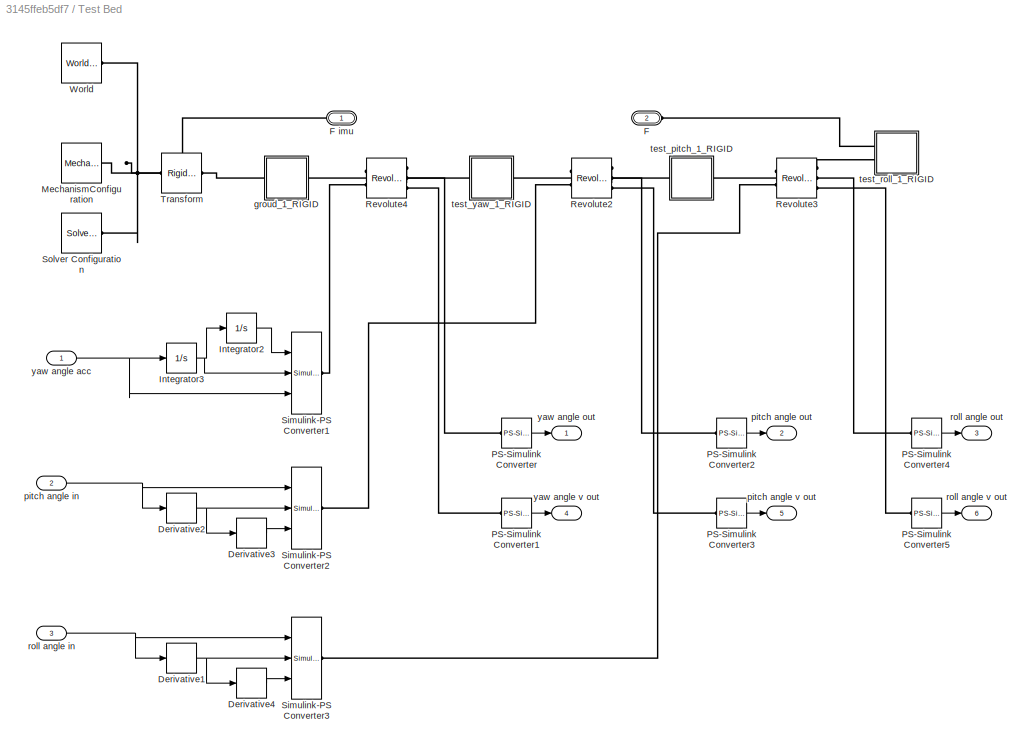
BLOCK [SubSystem] Test Bed
  Ports = [3, 6, 0, 0, 0, 1, 1]
  RequestExecContextInheritance = off
  Variant = off
BLOCK [Derivative] Test Bed/Derivative1
BLOCK [Derivative] Test Bed/Derivative2
BLOCK [Derivative] Test Bed/Derivative3
BLOCK [Derivative] Test Bed/Derivative4
BLOCK [PMIOPort] Test Bed/F
  Port = 2
  Side = Left
BLOCK [PMIOPort] Test Bed/F imu 
  Port = 1
  Side = Right
BLOCK [Integrator] Test Bed/Integrator2
  Ports = [1, 1]
BLOCK [Integrator] Test Bed/Integrator3
  Ports = [1, 1]
BLOCK [Reference] Test Bed/MechanismConfiguration  REF=sm_lib/Utilities/Mechanism
Configuration
  Ports = [0, 0, 0, 0, 0, 0, 1]
  SourceBlock = sm_lib/Utilities/Mechanism\nConfiguration
  SourceProductBaseCode = MS
  SourceProductName = Simscape Multibody
  SourceType = Mechanism\nConfiguration
BLOCK [Reference] Test Bed/PS-Simulink Converter  REF=nesl_utility/PS-Simulink
Converter
  Ports = [0, 1, 0, 0, 0, 1]
  SourceBlock = nesl_utility/PS-Simulink\nConverter
  SourceProductBaseCode = SS
  SourceProductName = Simscape
  SourceType = PS-Simulink\nConverter
BLOCK [Reference] Test Bed/PS-Simulink Converter1  REF=nesl_utility/PS-Simulink
Converter
  Ports = [0, 1, 0, 0, 0, 1]
  SourceBlock = nesl_utility/PS-Simulink\nConverter
  SourceProductBaseCode = SS
  SourceProductName = Simscape
  SourceType = PS-Simulink\nConverter
BLOCK [Reference] Test Bed/PS-Simulink Converter2  REF=nesl_utility/PS-Simulink
Converter
  Ports = [0, 1, 0, 0, 0, 1]
  SourceBlock = nesl_utility/PS-Simulink\nConverter
  SourceProductBaseCode = SS
  SourceProductName = Simscape
  SourceType = PS-Simulink\nConverter
BLOCK [Reference] Test Bed/PS-Simulink Converter3  REF=nesl_utility/PS-Simulink
Converter
  Ports = [0, 1, 0, 0, 0, 1]
  SourceBlock = nesl_utility/PS-Simulink\nConverter
  SourceProductBaseCode = SS
  SourceProductName = Simscape
  SourceType = PS-Simulink\nConverter
BLOCK [Reference] Test Bed/PS-Simulink Converter4  REF=nesl_utility/PS-Simulink
Converter
  Ports = [0, 1, 0, 0, 0, 1]
  SourceBlock = nesl_utility/PS-Simulink\nConverter
  SourceProductBaseCode = SS
  SourceProductName = Simscape
  SourceType = PS-Simulink\nConverter
BLOCK [Reference] Test Bed/PS-Simulink Converter5  REF=nesl_utility/PS-Simulink
Converter
  Ports = [0, 1, 0, 0, 0, 1]
  SourceBlock = nesl_utility/PS-Simulink\nConverter
  SourceProductBaseCode = SS
  SourceProductName = Simscape
  SourceType = PS-Simulink\nConverter
BLOCK [Reference] Test Bed/Revolute2  REF=sm_lib/Joints/Revolute Joint
  Ports = [0, 0, 0, 0, 0, 2, 3]
  SourceBlock = sm_lib/Joints/Revolute Joint
  SourceProductBaseCode = MS
  SourceProductName = Simscape Multibody
  SourceType = Revolute Joint
BLOCK [Reference] Test Bed/Revolute3  REF=sm_lib/Joints/Revolute Joint
  Ports = [0, 0, 0, 0, 0, 2, 3]
  SourceBlock = sm_lib/Joints/Revolute Joint
  SourceProductBaseCode = MS
  SourceProductName = Simscape Multibody
  SourceType = Revolute Joint
BLOCK [Reference] Test Bed/Revolute4  REF=sm_lib/Joints/Revolute Joint
  Ports = [0, 0, 0, 0, 0, 2, 3]
  SourceBlock = sm_lib/Joints/Revolute Joint
  SourceProductBaseCode = MS
  SourceProductName = Simscape Multibody
  SourceType = Revolute Joint
BLOCK [Reference] Test Bed/Simulink-PS Converter1  REF=nesl_utility/Simulink-PS
Converter
  Ports = [3, 0, 0, 0, 0, 0, 1]
  SourceBlock = nesl_utility/Simulink-PS\nConverter
  SourceProductBaseCode = SS
  SourceProductName = Simscape
  SourceType = Simulink-PS\nConverter
BLOCK [Reference] Test Bed/Simulink-PS Converter2  REF=nesl_utility/Simulink-PS
Converter
  Ports = [3, 0, 0, 0, 0, 0, 1]
  SourceBlock = nesl_utility/Simulink-PS\nConverter
  SourceProductBaseCode = SS
  SourceProductName = Simscape
  SourceType = Simulink-PS\nConverter
BLOCK [Reference] Test Bed/Simulink-PS Converter3  REF=nesl_utility/Simulink-PS
Converter
  Ports = [3, 0, 0, 0, 0, 0, 1]
  SourceBlock = nesl_utility/Simulink-PS\nConverter
  SourceProductBaseCode = SS
  SourceProductName = Simscape
  SourceType = Simulink-PS\nConverter
BLOCK [Reference] Test Bed/Solver Configuration  REF=nesl_utility/Solver
Configuration
  Ports = [0, 0, 0, 0, 0, 0, 1]
  SourceBlock = nesl_utility/Solver\nConfiguration
  SourceProductBaseCode = SS
  SourceProductName = Simscape
  SourceType = Solver\nConfiguration
BLOCK [Reference] Test Bed/Transform  REF=sm_lib/Frames and
Transforms/Rigid
Transform
  Ports = [0, 0, 0, 0, 0, 1, 1]
  SourceBlock = sm_lib/Frames and\nTransforms/Rigid\nTransform
  SourceProductBaseCode = MS
  SourceProductName = Simscape Multibody
  SourceType = Rigid\nTransform
BLOCK [Reference] Test Bed/World  REF=sm_lib/Frames and
Transforms/World Frame
  Ports = [0, 0, 0, 0, 0, 0, 1]
  SourceBlock = sm_lib/Frames and\nTransforms/World Frame
  SourceProductBaseCode = MS
  SourceProductName = Simscape Multibody
  SourceType = World Frame
BLOCK [SubSystem] Test Bed/groud_1_RIGID
  Ports = [0, 0, 0, 0, 0, 1, 1]
  RequestExecContextInheritance = off
  Variant = off
BLOCK [PMIOPort] Test Bed/groud_1_RIGID/F
  Port = 2
  Side = Right
BLOCK [PMIOPort] Test Bed/groud_1_RIGID/F1
  Port = 1
  Side = Left
BLOCK [Reference] Test Bed/groud_1_RIGID/ReferenceFrame  REF=sm_lib/Frames and
Transforms/Reference
Frame
  Ports = [0, 0, 0, 0, 0, 0, 1]
  SourceBlock = sm_lib/Frames and\nTransforms/Reference\nFrame
  SourceProductBaseCode = MS
  SourceProductName = Simscape Multibody
  SourceType = Reference\nFrame
BLOCK [Reference] Test Bed/groud_1_RIGID/Solid  REF=sm_lib/Body Elements/Solid
  Ports = [0, 0, 0, 0, 0, 0, 1]
  SourceBlock = sm_lib/Body Elements/Solid
  SourceProductBaseCode = MS
  SourceProductName = Simscape Multibody
  SourceType = Solid
BLOCK [Reference] Test Bed/groud_1_RIGID/Transform  REF=sm_lib/Frames and
Transforms/Rigid
Transform
  Ports = [0, 0, 0, 0, 0, 1, 1]
  SourceBlock = sm_lib/Frames and\nTransforms/Rigid\nTransform
  SourceProductBaseCode = MS
  SourceProductName = Simscape Multibody
  SourceType = Rigid\nTransform
BLOCK [Inport] Test Bed/pitch angle in
  IconDisplay = Port number
  Port = 2
BLOCK [Outport] Test Bed/pitch angle out
  IconDisplay = Port number
  Port = 2
BLOCK [Outport] Test Bed/pitch angle v out
  IconDisplay = Port number
  Port = 5
BLOCK [Inport] Test Bed/roll angle in
  IconDisplay = Port number
  Port = 3
BLOCK [Outport] Test Bed/roll angle out
  IconDisplay = Port number
  Port = 3
BLOCK [Outport] Test Bed/roll angle v out
  IconDisplay = Port number
  Port = 6
BLOCK [SubSystem] Test Bed/test_pitch_1_RIGID
  Ports = [0, 0, 0, 0, 0, 1, 1]
  RequestExecContextInheritance = off
  Variant = off
BLOCK [PMIOPort] Test Bed/test_pitch_1_RIGID/F
  Port = 1
  Side = Left
BLOCK [PMIOPort] Test Bed/test_pitch_1_RIGID/F1
  Port = 2
  Side = Right
BLOCK [Reference] Test Bed/test_pitch_1_RIGID/ReferenceFrame  REF=sm_lib/Frames and
Transforms/Reference
Frame
  Ports = [0, 0, 0, 0, 0, 0, 1]
  SourceBlock = sm_lib/Frames and\nTransforms/Reference\nFrame
  SourceProductBaseCode = MS
  SourceProductName = Simscape Multibody
  SourceType = Reference\nFrame
BLOCK [Reference] Test Bed/test_pitch_1_RIGID/Solid  REF=sm_lib/Body Elements/Solid
  Ports = [0, 0, 0, 0, 0, 0, 1]
  SourceBlock = sm_lib/Body Elements/Solid
  SourceProductBaseCode = MS
  SourceProductName = Simscape Multibody
  SourceType = Solid
BLOCK [Reference] Test Bed/test_pitch_1_RIGID/Transform  REF=sm_lib/Frames and
Transforms/Rigid
Transform
  Ports = [0, 0, 0, 0, 0, 1, 1]
  SourceBlock = sm_lib/Frames and\nTransforms/Rigid\nTransform
  SourceProductBaseCode = MS
  SourceProductName = Simscape Multibody
  SourceType = Rigid\nTransform
BLOCK [Reference] Test Bed/test_pitch_1_RIGID/Transform1  REF=sm_lib/Frames and
Transforms/Rigid
Transform
  Ports = [0, 0, 0, 0, 0, 1, 1]
  SourceBlock = sm_lib/Frames and\nTransforms/Rigid\nTransform
  SourceProductBaseCode = MS
  SourceProductName = Simscape Multibody
  SourceType = Rigid\nTransform
BLOCK [SubSystem] Test Bed/test_roll_1_RIGID
  Ports = [0, 0, 0, 0, 0, 2]
  RequestExecContextInheritance = off
  Variant = off
BLOCK [PMIOPort] Test Bed/test_roll_1_RIGID/F
  Port = 2
  Side = Left
BLOCK [PMIOPort] Test Bed/test_roll_1_RIGID/F1
  Port = 1
  Side = Left
BLOCK [Reference] Test Bed/test_roll_1_RIGID/ReferenceFrame  REF=sm_lib/Frames and
Transforms/Reference
Frame
  Ports = [0, 0, 0, 0, 0, 0, 1]
  SourceBlock = sm_lib/Frames and\nTransforms/Reference\nFrame
  SourceProductBaseCode = MS
  SourceProductName = Simscape Multibody
  SourceType = Reference\nFrame
BLOCK [Reference] Test Bed/test_roll_1_RIGID/Solid  REF=sm_lib/Body Elements/Solid
  Ports = [0, 0, 0, 0, 0, 0, 1]
  SourceBlock = sm_lib/Body Elements/Solid
  SourceProductBaseCode = MS
  SourceProductName = Simscape Multibody
  SourceType = Solid
BLOCK [Reference] Test Bed/test_roll_1_RIGID/Transform  REF=sm_lib/Frames and
Transforms/Rigid
Transform
  Ports = [0, 0, 0, 0, 0, 1, 1]
  SourceBlock = sm_lib/Frames and\nTransforms/Rigid\nTransform
  SourceProductBaseCode = MS
  SourceProductName = Simscape Multibody
  SourceType = Rigid\nTransform
BLOCK [Reference] Test Bed/test_roll_1_RIGID/Transform1  REF=sm_lib/Frames and
Transforms/Rigid
Transform
  Ports = [0, 0, 0, 0, 0, 1, 1]
  SourceBlock = sm_lib/Frames and\nTransforms/Rigid\nTransform
  SourceProductBaseCode = MS
  SourceProductName = Simscape Multibody
  SourceType = Rigid\nTransform
BLOCK [SubSystem] Test Bed/test_yaw_1_RIGID
  Ports = [0, 0, 0, 0, 0, 1, 1]
  RequestExecContextInheritance = off
  Variant = off
BLOCK [PMIOPort] Test Bed/test_yaw_1_RIGID/F
  Port = 2
  Side = Right
BLOCK [PMIOPort] Test Bed/test_yaw_1_RIGID/F1
  Port = 1
  Side = Left
BLOCK [Reference] Test Bed/test_yaw_1_RIGID/ReferenceFrame  REF=sm_lib/Frames and
Transforms/Reference
Frame
  Ports = [0, 0, 0, 0, 0, 0, 1]
  SourceBlock = sm_lib/Frames and\nTransforms/Reference\nFrame
  SourceProductBaseCode = MS
  SourceProductName = Simscape Multibody
  SourceType = Reference\nFrame
BLOCK [Reference] Test Bed/test_yaw_1_RIGID/Solid  REF=sm_lib/Body Elements/Solid
  Ports = [0, 0, 0, 0, 0, 0, 1]
  SourceBlock = sm_lib/Body Elements/Solid
  SourceProductBaseCode = MS
  SourceProductName = Simscape Multibody
  SourceType = Solid
BLOCK [Reference] Test Bed/test_yaw_1_RIGID/Transform  REF=sm_lib/Frames and
Transforms/Rigid
Transform
  Ports = [0, 0, 0, 0, 0, 1, 1]
  SourceBlock = sm_lib/Frames and\nTransforms/Rigid\nTransform
  SourceProductBaseCode = MS
  SourceProductName = Simscape Multibody
  SourceType = Rigid\nTransform
BLOCK [Reference] Test Bed/test_yaw_1_RIGID/Transform1  REF=sm_lib/Frames and
Transforms/Rigid
Transform
  Ports = [0, 0, 0, 0, 0, 1, 1]
  SourceBlock = sm_lib/Frames and\nTransforms/Rigid\nTransform
  SourceProductBaseCode = MS
  SourceProductName = Simscape Multibody
  SourceType = Rigid\nTransform
BLOCK [Inport] Test Bed/yaw angle acc
  IconDisplay = Port number
BLOCK [Outport] Test Bed/yaw angle out
  IconDisplay = Port number
BLOCK [Outport] Test Bed/yaw angle v out
  IconDisplay = Port number
  Port = 4
BLOCK [SubSystem] Tracking
  ErrorFcn = Stateflow.Translate.translate
  PermitHierarchicalResolution = ExplicitOnly
  Ports = [1, 1]
  RequestExecContextInheritance = off
  SFBlockType = MATLAB Function
  TreatAsAtomicUnit = on
  Variant = off
BLOCK [Demux] Tracking/ Demux 
  Outputs = 1
  Ports = [1, 1]
BLOCK [S-Function] Tracking/ SFunction 
  EnableBusSupport = off
  FunctionName = sf_sfun
  PortCounts = [1 2]
  Ports = [1, 2]
  SFcnIsStateOwnerBlock = off
  SFunctionDeploymentMode = off
  Tag = Stateflow S-Function gimbal_test_2017_11_24 2
BLOCK [Terminator] Tracking/ Terminator 
BLOCK [Inport] Tracking/u
  IconDisplay = Port number
BLOCK [Outport] Tracking/y
  IconDisplay = Port number
BLOCK [SubSystem] body att meansure
  Ports = [2, 1]
  RequestExecContextInheritance = off
  Variant = off
BLOCK [SubSystem] body att meansure/Quat body2earth
  ErrorFcn = Stateflow.Translate.translate
  PermitHierarchicalResolution = ExplicitOnly
  Ports = [1, 1]
  RequestExecContextInheritance = off
  SFBlockType = MATLAB Function
  TreatAsAtomicUnit = on
  Variant = off
BLOCK [Demux] body att meansure/Quat body2earth/ Demux 
  Outputs = 1
  Ports = [1, 1]
BLOCK [S-Function] body att meansure/Quat body2earth/ SFunction 
  EnableBusSupport = on
  FunctionName = sf_sfun
  PortCounts = [1 2]
  Ports = [1, 2]
  SFcnIsStateOwnerBlock = off
  SFunctionDeploymentMode = off
  Tag = Stateflow S-Function gimbal_test_2017_11_24 16
BLOCK [Terminator] body att meansure/Quat body2earth/ Terminator 
BLOCK [Inport] body att meansure/Quat body2earth/enc
  IconDisplay = Port number
BLOCK [Outport] body att meansure/Quat body2earth/quatb
  IconDisplay = Port number
BLOCK [SubSystem] body att meansure/conj 1
  ErrorFcn = Stateflow.Translate.translate
  PermitHierarchicalResolution = ExplicitOnly
  Ports = [1, 1]
  RequestExecContextInheritance = off
  SFBlockType = MATLAB Function
  TreatAsAtomicUnit = on
  Variant = off
BLOCK [Demux] body att meansure/conj 1/ Demux 
  Outputs = 1
  Ports = [1, 1]
BLOCK [S-Function] body att meansure/conj 1/ SFunction 
  EnableBusSupport = on
  FunctionName = sf_sfun
  PortCounts = [1 2]
  Ports = [1, 2]
  SFcnIsStateOwnerBlock = off
  SFunctionDeploymentMode = off
  Tag = Stateflow S-Function gimbal_test_2017_11_24 19
BLOCK [Terminator] body att meansure/conj 1/ Terminator 
BLOCK [Outport] body att meansure/conj 1/cq
  IconDisplay = Port number
BLOCK [Inport] body att meansure/conj 1/q
  IconDisplay = Port number
BLOCK [SubSystem] body att meansure/conj 2
  ErrorFcn = Stateflow.Translate.translate
  PermitHierarchicalResolution = ExplicitOnly
  Ports = [1, 1]
  RequestExecContextInheritance = off
  SFBlockType = MATLAB Function
  TreatAsAtomicUnit = on
  Variant = off
BLOCK [Demux] body att meansure/conj 2/ Demux 
  Outputs = 1
  Ports = [1, 1]
BLOCK [S-Function] body att meansure/conj 2/ SFunction 
  EnableBusSupport = on
  FunctionName = sf_sfun
  PortCounts = [1 2]
  Ports = [1, 2]
  SFcnIsStateOwnerBlock = off
  SFunctionDeploymentMode = off
  Tag = Stateflow S-Function gimbal_test_2017_11_24 20
BLOCK [Terminator] body att meansure/conj 2/ Terminator 
BLOCK [Outport] body att meansure/conj 2/cq
  IconDisplay = Port number
BLOCK [Inport] body att meansure/conj 2/q
  IconDisplay = Port number
BLOCK [Inport] body att meansure/enc
  IconDisplay = Port number
  Port = 2
BLOCK [Outport] body att meansure/quat body
  IconDisplay = Port number
BLOCK [Inport] body att meansure/quat camera
  IconDisplay = Port number
BLOCK [SubSystem] body att meansure/quat product 
  ErrorFcn = Stateflow.Translate.translate
  PermitHierarchicalResolution = ExplicitOnly
  Ports = [2, 1]
  RequestExecContextInheritance = off
  SFBlockType = MATLAB Function
  TreatAsAtomicUnit = on
  Variant = off
BLOCK [Demux] body att meansure/quat product / Demux 
  Outputs = 1
  Ports = [1, 1]
BLOCK [S-Function] body att meansure/quat product / SFunction 
  EnableBusSupport = on
  FunctionName = sf_sfun
  PortCounts = [2 2]
  Ports = [2, 2]
  SFcnIsStateOwnerBlock = off
  SFunctionDeploymentMode = off
  Tag = Stateflow S-Function gimbal_test_2017_11_24 17
BLOCK [Terminator] body att meansure/quat product / Terminator 
BLOCK [Inport] body att meansure/quat product /a
  IconDisplay = Port number
BLOCK [Inport] body att meansure/quat product /b
  IconDisplay = Port number
  Port = 2
BLOCK [Outport] body att meansure/quat product /c
  IconDisplay = Port number
BLOCK [Gain] deg2rad
  Gain = -pi/180
  OutDataTypeStr = Inherit: Inherit via internal rule
  ParamDataTypeStr = Inherit: Inherit via internal rule
  SaturateOnIntegerOverflow = off
BLOCK [Gain] deg2rad1
  Gain = -pi/180
  OutDataTypeStr = Inherit: Inherit via internal rule
  ParamDataTypeStr = Inherit: Inherit via internal rule
  SaturateOnIntegerOverflow = off
BLOCK [SubSystem] gradient decline
  Ports = [2, 1]
  RequestExecContextInheritance = off
  Variant = off
BLOCK [Delay] gradient decline/Delay
  DelayLength = 1
  InitialCondition = [1;0;0;0]
  InputPortMap = u0
  Ports = [1, 1]
BLOCK [SubSystem] gradient decline/Madgwick
  ErrorFcn = Stateflow.Translate.translate
  PermitHierarchicalResolution = ExplicitOnly
  Ports = [5, 1]
  RequestExecContextInheritance = off
  SFBlockType = MATLAB Function
  TreatAsAtomicUnit = on
  Variant = off
BLOCK [Demux] gradient decline/Madgwick/ Demux 
  Outputs = 1
  Ports = [1, 1]
BLOCK [S-Function] gradient decline/Madgwick/ SFunction 
  EnableBusSupport = on
  FunctionName = sf_sfun
  PortCounts = [5 2]
  Ports = [5, 2]
  SFcnIsStateOwnerBlock = off
  SFunctionDeploymentMode = off
  Tag = Stateflow S-Function gimbal_test_2017_11_24 15
BLOCK [Terminator] gradient decline/Madgwick/ Terminator 
BLOCK [Inport] gradient decline/Madgwick/a
  IconDisplay = Port number
  Port = 2
BLOCK [Inport] gradient decline/Madgwick/beta
  IconDisplay = Port number
  Port = 3
BLOCK [Inport] gradient decline/Madgwick/dt
  IconDisplay = Port number
  Port = 4
BLOCK [Inport] gradient decline/Madgwick/g
  IconDisplay = Port number
BLOCK [Outport] gradient decline/Madgwick/q
  IconDisplay = Port number
BLOCK [Inport] gradient decline/Madgwick/q_
  IconDisplay = Port number
  Port = 5
BLOCK [Inport] gradient decline/acc
  IconDisplay = Port number
  Port = 2
BLOCK [Constant] gradient decline/beta
BLOCK [Constant] gradient decline/dt
  Value = 0.001
BLOCK [Inport] gradient decline/gyro
  IconDisplay = Port number
BLOCK [Outport] gradient decline/quat
  IconDisplay = Port number
BLOCK [Constant] pitch init pos
  Value = 0
BLOCK [SubSystem] quat to euler
  ErrorFcn = Stateflow.Translate.translate
  PermitHierarchicalResolution = ExplicitOnly
  Ports = [1, 1]
  RequestExecContextInheritance = off
  SFBlockType = MATLAB Function
  TreatAsAtomicUnit = on
  Variant = off
BLOCK [Demux] quat to euler/ Demux 
  Outputs = 1
  Ports = [1, 1]
BLOCK [S-Function] quat to euler/ SFunction 
  EnableBusSupport = on
  FunctionName = sf_sfun
  PortCounts = [1 2]
  Ports = [1, 2]
  SFcnIsStateOwnerBlock = off
  SFunctionDeploymentMode = off
  Tag = Stateflow S-Function gimbal_test_2017_11_24 3
BLOCK [Terminator] quat to euler/ Terminator 
BLOCK [Outport] quat to euler/euler
  IconDisplay = Port number
BLOCK [Inport] quat to euler/q
  IconDisplay = Port number
BLOCK [SubSystem] quat to euler1
  ErrorFcn = Stateflow.Translate.translate
  PermitHierarchicalResolution = ExplicitOnly
  Ports = [1, 1]
  RequestExecContextInheritance = off
  SFBlockType = MATLAB Function
  TreatAsAtomicUnit = on
  Variant = off
BLOCK [Demux] quat to euler1/ Demux 
  Outputs = 1
  Ports = [1, 1]
BLOCK [S-Function] quat to euler1/ SFunction 
  EnableBusSupport = on
  FunctionName = sf_sfun
  PortCounts = [1 2]
  Ports = [1, 2]
  SFcnIsStateOwnerBlock = off
  SFunctionDeploymentMode = off
  Tag = Stateflow S-Function gimbal_test_2017_11_24 8
BLOCK [Terminator] quat to euler1/ Terminator 
BLOCK [Outport] quat to euler1/euler
  IconDisplay = Port number
BLOCK [Inport] quat to euler1/q
  IconDisplay = Port number
BLOCK [SubSystem] quat to euler2
  ErrorFcn = Stateflow.Translate.translate
  PermitHierarchicalResolution = ExplicitOnly
  Ports = [1, 1]
  RequestExecContextInheritance = off
  SFBlockType = MATLAB Function
  TreatAsAtomicUnit = on
  Variant = off
BLOCK [Demux] quat to euler2/ Demux 
  Outputs = 1
  Ports = [1, 1]
BLOCK [S-Function] quat to euler2/ SFunction 
  EnableBusSupport = on
  FunctionName = sf_sfun
  PortCounts = [1 2]
  Ports = [1, 2]
  SFcnIsStateOwnerBlock = off
  SFunctionDeploymentMode = off
  Tag = Stateflow S-Function gimbal_test_2017_11_24 10
BLOCK [Terminator] quat to euler2/ Terminator 
BLOCK [Outport] quat to euler2/euler
  IconDisplay = Port number
BLOCK [Inport] quat to euler2/q
  IconDisplay = Port number
BLOCK [SubSystem] quat to euler3
  ErrorFcn = Stateflow.Translate.translate
  PermitHierarchicalResolution = ExplicitOnly
  Ports = [1, 1]
  RequestExecContextInheritance = off
  SFBlockType = MATLAB Function
  TreatAsAtomicUnit = on
  Variant = off
BLOCK [Demux] quat to euler3/ Demux 
  Outputs = 1
  Ports = [1, 1]
BLOCK [S-Function] quat to euler3/ SFunction 
  EnableBusSupport = on
  FunctionName = sf_sfun
  PortCounts = [1 2]
  Ports = [1, 2]
  SFcnIsStateOwnerBlock = off
  SFunctionDeploymentMode = off
  Tag = Stateflow S-Function gimbal_test_2017_11_24 24
BLOCK [Terminator] quat to euler3/ Terminator 
BLOCK [Outport] quat to euler3/euler
  IconDisplay = Port number
BLOCK [Inport] quat to euler3/q
  IconDisplay = Port number
BLOCK [Constant] roll init pos
  Value = -pi/2
LINE Camera IMU/Gain:1 -> Camera IMU/quaternion :1
LINE Camera IMU/Integrator:1 -> Camera IMU/attitude (rad):1
NET Camera IMU/MATLAB Function1:1 -> Camera IMU/Scope1:1, Camera IMU/acc (m//ss):1
NET Camera IMU/MATLAB Function2:1 -> Camera IMU/Integrator:1, Camera IMU/gyro (rad//s):1
NET Camera IMU/Mux1:1 -> Camera IMU/Scope:1, Camera IMU/Sum1:1
LINE Camera IMU/Mux:1 -> Camera IMU/MATLAB Function2:1
LINE Camera IMU/PS-Simulink Converter1:1 -> Camera IMU/Gain:1
LINE Camera IMU/PS-Simulink Converter2:1 -> Camera IMU/Mux1:1
LINE Camera IMU/PS-Simulink Converter3:1 -> Camera IMU/Mux1:2
LINE Camera IMU/PS-Simulink Converter4:1 -> Camera IMU/Mux1:3
NET Camera IMU/PS-Simulink Converter6:1 -> Camera IMU/MATLAB Function1:2, Camera IMU/MATLAB Function2:2, Camera IMU/RM:1
LINE Camera IMU/PS-Simulink Converter7:1 -> Camera IMU/Mux:1
LINE Camera IMU/PS-Simulink Converter8:1 -> Camera IMU/Mux:2
LINE Camera IMU/PS-Simulink Converter9:1 -> Camera IMU/Mux:3
LINE Camera IMU/Sum1:1 -> Camera IMU/Scope2:1
LINE Camera IMU/Sum:1 -> Camera IMU/MATLAB Function1:1
NET Camera IMU/gravity :1 -> Camera IMU/Sum1:2, Camera IMU/Sum:2
LINE Camera IMU1/Gain:1 -> Camera IMU1/quaternion :1
LINE Camera IMU1/Integrator:1 -> Camera IMU1/attitude (rad):1
LINE Camera IMU1/MATLAB Function1:1 -> Camera IMU1/acc (m//ss):1
NET Camera IMU1/MATLAB Function2:1 -> Camera IMU1/Integrator:1, Camera IMU1/gyro (rad//s):1
NET Camera IMU1/Mux1:1 -> Camera IMU1/Scope:1, Camera IMU1/Sum:1
LINE Camera IMU1/Mux:1 -> Camera IMU1/MATLAB Function2:1
LINE Camera IMU1/PS-Simulink Converter1:1 -> Camera IMU1/Gain:1
LINE Camera IMU1/PS-Simulink Converter2:1 -> Camera IMU1/Mux1:1
LINE Camera IMU1/PS-Simulink Converter3:1 -> Camera IMU1/Mux1:2
LINE Camera IMU1/PS-Simulink Converter4:1 -> Camera IMU1/Mux1:3
NET Camera IMU1/PS-Simulink Converter6:1 -> Camera IMU1/MATLAB Function1:2, Camera IMU1/MATLAB Function2:2, Camera IMU1/RM:1
LINE Camera IMU1/PS-Simulink Converter7:1 -> Camera IMU1/Mux:1
LINE Camera IMU1/PS-Simulink Converter8:1 -> Camera IMU1/Mux:2
LINE Camera IMU1/PS-Simulink Converter9:1 -> Camera IMU1/Mux:3
LINE Camera IMU1/Sum:1 -> Camera IMU1/MATLAB Function1:1
LINE Camera IMU1/gravity :1 -> Camera IMU1/Sum:2
NET Camera IMU:1 -> GradienDeclineY1:2, GradienDeclineY:2, GradienDeclineZ:2, PID Controller:3, gradient decline:1
NET Camera IMU:2 -> GradienDeclineY1:1, GradienDeclineY:1, GradienDeclineZ:1, gradient decline:2
LINE Camera IMU:3 -> Gain8:1
LINE Camera IMU:5 -> body att meansure:1
LINE Clock:1 -> Switch:2
LINE Constant1:1 -> Mux1:1
LINE Constant2:1 -> GradienDeclineY:4
LINE Constant3:1 -> GradienDeclineZ:4
LINE Constant4:1 -> GradienDeclineZ:5
LINE Constant5:1 -> GradienDeclineY:5
LINE Constant6:1 -> GradienDeclineY1:4
LINE Constant7:1 -> GradienDeclineY1:5
LINE Constant8:1 -> Mux1:2
LINE Constant:1 -> Gain3:1
NET Delay1:1 -> Get Head from Z&X:1, GradienDeclineY:6
NET Delay2:1 -> Get Head from prj :1, GradienDeclineY1:6
NET Delay:1 -> Get Head from Z:2, GradienDeclineZ:6
LINE Gain1:1 -> PID Controller:1
LINE Gain2:1 -> Scope2:1
LINE Gain3:1 -> Sum4:1
LINE Gain4:1 -> Sum3:1
LINE Gain5:1 -> Scope1:1
LINE Gain6:1 -> Scope5:1
LINE Gain7:1 -> Scope10:1
LINE Gain8:1 -> Scope3:1
LINE Gain9:1 -> Scope2:2
LINE Gain:1 -> Test Bed:1
LINE Get Head from Z&X:1 -> GradienDeclineY:3
LINE Get Head from Z:1 -> GradienDeclineZ:3
LINE Get Head from prj :1 -> GradienDeclineY1:3
LINE Gimbal Mechanical/Constant1:1 -> Gimbal Mechanical/Pitch Enc1:2
LINE Gimbal Mechanical/Constant2:1 -> Gimbal Mechanical/Pitch Enc:2
LINE Gimbal Mechanical/Constant4:1 -> Gimbal Mechanical/Pitch Enc2:2
LINE Gimbal Mechanical/Demux:1 -> Gimbal Mechanical/i2f4:1
LINE Gimbal Mechanical/Demux:2 -> Gimbal Mechanical/i2f1:1
LINE Gimbal Mechanical/Demux:3 -> Gimbal Mechanical/i2f2:1
LINE Gimbal Mechanical/Gain3:1 -> Gimbal Mechanical/Mux1:3
LINE Gimbal Mechanical/Gain6:1 -> Gimbal Mechanical/Mux2:1
LINE Gimbal Mechanical/Gain7:1 -> Gimbal Mechanical/Mux2:3
LINE Gimbal Mechanical/Gain8:1 -> Gimbal Mechanical/Mux2:2
LINE Gimbal Mechanical/Mux1:1 -> Gimbal Mechanical/motor v (rad//s):1
LINE Gimbal Mechanical/Mux2:1 -> Gimbal Mechanical/encoder (rad):1
LINE Gimbal Mechanical/PS-Simulink Converter1:1 -> Gimbal Mechanical/Gain3:1
LINE Gimbal Mechanical/PS-Simulink Converter2:1 -> Gimbal Mechanical/Pitch Enc1:1
LINE Gimbal Mechanical/PS-Simulink Converter3:1 -> Gimbal Mechanical/Mux1:1
LINE Gimbal Mechanical/PS-Simulink Converter4:1 -> Gimbal Mechanical/Pitch Enc:1
LINE Gimbal Mechanical/PS-Simulink Converter5:1 -> Gimbal Mechanical/Mux1:2
LINE Gimbal Mechanical/PS-Simulink Converter:1 -> Gimbal Mechanical/Pitch Enc2:1
LINE Gimbal Mechanical/Pitch Enc1:1 -> Gimbal Mechanical/Gain6:1
LINE Gimbal Mechanical/Pitch Enc2:1 -> Gimbal Mechanical/Gain7:1
LINE Gimbal Mechanical/Pitch Enc:1 -> Gimbal Mechanical/Gain8:1
LINE Gimbal Mechanical/i2f1:1 -> Gimbal Mechanical/Simulink-PS Converter5:1
LINE Gimbal Mechanical/i2f2:1 -> Gimbal Mechanical/Simulink-PS Converter3:1
LINE Gimbal Mechanical/i2f4:1 -> Gimbal Mechanical/Simulink-PS Converter4:1
LINE Gimbal Mechanical/motor in:1 -> Gimbal Mechanical/Demux:1
NET Gimbal Mechanical:1 -> Gain9:1, MATLAB Function:2, Sum3:2
NET GradienDeclineY1:1 -> Delay2:1, quat to euler3:1
NET GradienDeclineY:1 -> Delay1:1, quat to euler2:1
NET GradienDeclineZ:1 -> Delay:1, Scope9:1, quat to euler1:1
LINE MATLAB Function:1 -> Gimbal Mechanical:1
LINE Manual Switch:1 -> deg2rad:1
LINE Mux1:1 -> Gain1:1
LINE PID Controller/Demux1:1 -> PID Controller/Sum2:1
LINE PID Controller/Demux1:2 -> PID Controller/Sum1:1
LINE PID Controller/Demux1:3 -> PID Controller/Sum3:1
LINE PID Controller/Demux2:1 -> PID Controller/Sum7:2
LINE PID Controller/Demux2:2 -> PID Controller/Sum8:2
LINE PID Controller/Demux2:3 -> PID Controller/Sum6:2
LINE PID Controller/Demux3:1 -> PID Controller/Sum2:2
LINE PID Controller/Demux3:2 -> PID Controller/Sum1:2
LINE PID Controller/Demux3:3 -> PID Controller/Sum3:2
LINE PID Controller/Mux:1 -> PID Controller/motor value:1
LINE PID Controller/PID Controller1:1 -> PID Controller/Mux:1
LINE PID Controller/PID Controller2:1 -> PID Controller/Mux:2
LINE PID Controller/PID Controller3:1 -> PID Controller/Sum8:1
LINE PID Controller/PID Controller4:1 -> PID Controller/Sum7:1
LINE PID Controller/PID Controller5:1 -> PID Controller/Sum6:1
LINE PID Controller/PID Controller:1 -> PID Controller/Mux:3
LINE PID Controller/Sum1:1 -> PID Controller/PID Controller3:1
LINE PID Controller/Sum2:1 -> PID Controller/PID Controller4:1
LINE PID Controller/Sum3:1 -> PID Controller/PID Controller5:1
LINE PID Controller/Sum6:1 -> PID Controller/PID Controller:1
LINE PID Controller/Sum7:1 -> PID Controller/PID Controller1:1
LINE PID Controller/Sum8:1 -> PID Controller/PID Controller2:1
LINE PID Controller/angle fb:1 -> PID Controller/Demux3:1
NET PID Controller/angle sp:1 -> PID Controller/Demux1:1, PID Controller/Scope:1
LINE PID Controller/angle v fb:1 -> PID Controller/Demux2:1
LINE PID Controller:1 -> MATLAB Function:1
LINE Pulse Generator:1 -> Mux1:3
LINE Ramp:1 -> Saturation:1
LINE Random Number:1 -> Gain4:1
LINE Saturation:1 -> Manual Switch:1
LINE Signal Builder1:1 -> Switch:3
LINE Signal Builder1:2 -> Switch:1
LINE Sine Wave1:1 -> deg2rad1:1
LINE Sine Wave:1 -> Manual Switch:2
LINE Sum1:1 -> Test Bed:2
LINE Sum2:1 -> Test Bed:3
LINE Sum3:1 -> Sum4:2
NET Sum4:1 -> Get Head from Z&X:2, Get Head from Z:1, Get Head from prj :2, body att meansure:2
LINE Switch:1 -> Gain:1
NET Test Bed/Derivative1:1 -> Test Bed/Derivative4:1, Test Bed/Simulink-PS Converter3:2
NET Test Bed/Derivative2:1 -> Test Bed/Derivative3:1, Test Bed/Simulink-PS Converter2:2
LINE Test Bed/Derivative3:1 -> Test Bed/Simulink-PS Converter2:3
LINE Test Bed/Derivative4:1 -> Test Bed/Simulink-PS Converter3:3
LINE Test Bed/Integrator2:1 -> Test Bed/Simulink-PS Converter1:1
NET Test Bed/Integrator3:1 -> Test Bed/Integrator2:1, Test Bed/Simulink-PS Converter1:2
LINE Test Bed/PS-Simulink Converter1:1 -> Test Bed/yaw angle v out:1
LINE Test Bed/PS-Simulink Converter2:1 -> Test Bed/pitch angle out:1
LINE Test Bed/PS-Simulink Converter3:1 -> Test Bed/pitch angle v out:1
LINE Test Bed/PS-Simulink Converter4:1 -> Test Bed/roll angle out:1
LINE Test Bed/PS-Simulink Converter5:1 -> Test Bed/roll angle v out:1
LINE Test Bed/PS-Simulink Converter:1 -> Test Bed/yaw angle out:1
NET Test Bed/pitch angle in:1 -> Test Bed/Derivative2:1, Test Bed/Simulink-PS Converter2:1
NET Test Bed/roll angle in:1 -> Test Bed/Derivative1:1, Test Bed/Simulink-PS Converter3:1
NET Test Bed/yaw angle acc:1 -> Test Bed/Integrator3:1, Test Bed/Simulink-PS Converter1:3
LINE body att meansure/Quat body2earth:1 -> body att meansure/quat product :1
LINE body att meansure/conj 1:1 -> body att meansure/quat product :2
LINE body att meansure/conj 2:1 -> body att meansure/quat body:1
LINE body att meansure/enc:1 -> body att meansure/Quat body2earth:1
LINE body att meansure/quat camera:1 -> body att meansure/conj 1:1
LINE body att meansure/quat product :1 -> body att meansure/conj 2:1
LINE deg2rad1:1 -> Sum2:2
LINE deg2rad:1 -> Sum1:2
LINE gradient decline/Delay:1 -> gradient decline/Madgwick:5
NET gradient decline/Madgwick:1 -> gradient decline/Delay:1, gradient decline/quat:1
LINE gradient decline/acc:1 -> gradient decline/Madgwick:2
LINE gradient decline/beta:1 -> gradient decline/Madgwick:3
LINE gradient decline/dt:1 -> gradient decline/Madgwick:4
LINE gradient decline/gyro:1 -> gradient decline/Madgwick:1
LINE gradient decline:1 -> quat to euler:1
LINE pitch init pos:1 -> Sum1:1
LINE quat to euler1:1 -> Gain6:1
LINE quat to euler2:1 -> Gain7:1
LINE quat to euler3:1 -> Gain5:1
NET quat to euler:1 -> Gain2:1, PID Controller:2
LINE roll init pos:1 -> Sum2:1
PLINE Camera IMU/B:RConn1 -- Camera IMU/Transform Sensor:LConn1
PLINE Camera IMU/F:RConn1 -- Camera IMU/Transform Sensor:RConn1
PLINE Camera IMU/PS-Simulink Converter1:LConn1 -- Camera IMU/Transform Sensor:RConn2
PLINE Camera IMU/PS-Simulink Converter2:LConn1 -- Camera IMU/Transform Sensor:RConn7
PLINE Camera IMU/PS-Simulink Converter3:LConn1 -- Camera IMU/Transform Sensor:RConn8
PLINE Camera IMU/PS-Simulink Converter4:LConn1 -- Camera IMU/Transform Sensor:RConn9
PLINE Camera IMU/PS-Simulink Converter6:LConn1 -- Camera IMU/Transform Sensor:RConn3
PLINE Camera IMU/PS-Simulink Converter7:LConn1 -- Camera IMU/Transform Sensor:RConn4
PLINE Camera IMU/PS-Simulink Converter8:LConn1 -- Camera IMU/Transform Sensor:RConn5
PLINE Camera IMU/PS-Simulink Converter9:LConn1 -- Camera IMU/Transform Sensor:RConn6
PLINE Camera IMU1/B:RConn1 -- Camera IMU1/Transform Sensor:LConn1
PLINE Camera IMU1/F:RConn1 -- Camera IMU1/Transform Sensor:RConn1
PLINE Camera IMU1/PS-Simulink Converter1:LConn1 -- Camera IMU1/Transform Sensor:RConn2
PLINE Camera IMU1/PS-Simulink Converter2:LConn1 -- Camera IMU1/Transform Sensor:RConn7
PLINE Camera IMU1/PS-Simulink Converter3:LConn1 -- Camera IMU1/Transform Sensor:RConn8
PLINE Camera IMU1/PS-Simulink Converter4:LConn1 -- Camera IMU1/Transform Sensor:RConn9
PLINE Camera IMU1/PS-Simulink Converter6:LConn1 -- Camera IMU1/Transform Sensor:RConn3
PLINE Camera IMU1/PS-Simulink Converter7:LConn1 -- Camera IMU1/Transform Sensor:RConn4
PLINE Camera IMU1/PS-Simulink Converter8:LConn1 -- Camera IMU1/Transform Sensor:RConn5
PLINE Camera IMU1/PS-Simulink Converter9:LConn1 -- Camera IMU1/Transform Sensor:RConn6
PLINE Camera IMU1:RConn1 -- Gimbal Mechanical:LConn2
PNET net1: Camera IMU1:RConn2 -- Camera IMU:RConn2 -- Test Bed:RConn1
PLINE Camera IMU:RConn1 -- Gimbal Mechanical:LConn1
PLINE Gimbal Mechanical/B body:RConn1 -- Gimbal Mechanical/groud_2_RIGID:RConn2
PLINE Gimbal Mechanical/B imu:RConn1 -- Gimbal Mechanical/pitch_1_RIGID:LConn1
PLINE Gimbal Mechanical/B:RConn1 -- Gimbal Mechanical/groud_2_RIGID:LConn1
PLINE Gimbal Mechanical/PS-Simulink Converter1:LConn1 -- Gimbal Mechanical/Revolute:RConn3
PLINE Gimbal Mechanical/PS-Simulink Converter2:LConn1 -- Gimbal Mechanical/Revolute1:RConn2
PLINE Gimbal Mechanical/PS-Simulink Converter3:LConn1 -- Gimbal Mechanical/Revolute1:RConn3
PLINE Gimbal Mechanical/PS-Simulink Converter4:LConn1 -- Gimbal Mechanical/Revolute5:RConn2
PLINE Gimbal Mechanical/PS-Simulink Converter5:LConn1 -- Gimbal Mechanical/Revolute5:RConn3
PLINE Gimbal Mechanical/PS-Simulink Converter:LConn1 -- Gimbal Mechanical/Revolute:RConn2
PLINE Gimbal Mechanical/Revolute1:LConn1 -- Gimbal Mechanical/yaw_1_RIGID:RConn1
PLINE Gimbal Mechanical/Revolute1:LConn2 -- Gimbal Mechanical/Simulink-PS Converter4:RConn1
PLINE Gimbal Mechanical/Revolute1:RConn1 -- Gimbal Mechanical/roll_1_RIGID:LConn1
PLINE Gimbal Mechanical/Revolute5:LConn1 -- Gimbal Mechanical/roll_1_RIGID:RConn1
PLINE Gimbal Mechanical/Revolute5:LConn2 -- Gimbal Mechanical/Simulink-PS Converter5:RConn1
PLINE Gimbal Mechanical/Revolute5:RConn1 -- Gimbal Mechanical/pitch_1_RIGID:LConn2
PLINE Gimbal Mechanical/Revolute:LConn1 -- Gimbal Mechanical/groud_2_RIGID:RConn1
PLINE Gimbal Mechanical/Revolute:LConn2 -- Gimbal Mechanical/Simulink-PS Converter3:RConn1
PLINE Gimbal Mechanical/Revolute:RConn1 -- Gimbal Mechanical/yaw_1_RIGID:LConn1
PLINE Gimbal Mechanical/groud_2_RIGID/F1:RConn1 -- Gimbal Mechanical/groud_2_RIGID/Transform1:RConn1
PLINE Gimbal Mechanical/groud_2_RIGID/F:RConn1 -- Gimbal Mechanical/groud_2_RIGID/Transform:RConn1
PNET net2: Gimbal Mechanical/groud_2_RIGID/ReferenceFrame:RConn1 -- Gimbal Mechanical/groud_2_RIGID/Solid:RConn1 -- Gimbal Mechanical/groud_2_RIGID/Transform1:LConn1 -- Gimbal Mechanical/groud_2_RIGID/Transform:LConn1 -- Gimbal Mechanical/groud_2_RIGID/correct :LConn1
PLINE Gimbal Mechanical/groud_2_RIGID/body att :RConn1 -- Gimbal Mechanical/groud_2_RIGID/correct :RConn1
PLINE Gimbal Mechanical/load_1_RIGID/F:RConn1 -- Gimbal Mechanical/load_1_RIGID/Transform:RConn1
PNET net3: Gimbal Mechanical/load_1_RIGID/ReferenceFrame:RConn1 -- Gimbal Mechanical/load_1_RIGID/Solid:RConn1 -- Gimbal Mechanical/load_1_RIGID/Transform:LConn1
PLINE Gimbal Mechanical/load_1_RIGID:LConn1 -- Gimbal Mechanical/pitch_1_RIGID:LConn3
PNET net4: Gimbal Mechanical/pitch_1_RIGID/B:RConn1 -- Gimbal Mechanical/pitch_1_RIGID/ReferenceFrame:RConn1 -- Gimbal Mechanical/pitch_1_RIGID/Solid:RConn1 -- Gimbal Mechanical/pitch_1_RIGID/Transform1:LConn1 -- Gimbal Mechanical/pitch_1_RIGID/Transform:LConn1
PLINE Gimbal Mechanical/pitch_1_RIGID/F1:RConn1 -- Gimbal Mechanical/pitch_1_RIGID/Transform1:RConn1
PLINE Gimbal Mechanical/pitch_1_RIGID/F:RConn1 -- Gimbal Mechanical/pitch_1_RIGID/Transform:RConn1
PLINE Gimbal Mechanical/roll_1_RIGID/F1:RConn1 -- Gimbal Mechanical/roll_1_RIGID/Transform1:RConn1
PLINE Gimbal Mechanical/roll_1_RIGID/F:RConn1 -- Gimbal Mechanical/roll_1_RIGID/Transform:RConn1
PNET net5: Gimbal Mechanical/roll_1_RIGID/ReferenceFrame:RConn1 -- Gimbal Mechanical/roll_1_RIGID/Solid:RConn1 -- Gimbal Mechanical/roll_1_RIGID/Transform1:LConn1 -- Gimbal Mechanical/roll_1_RIGID/Transform:LConn1
PLINE Gimbal Mechanical/yaw_1_RIGID/F1:RConn1 -- Gimbal Mechanical/yaw_1_RIGID/Transform1:RConn1
PLINE Gimbal Mechanical/yaw_1_RIGID/F:RConn1 -- Gimbal Mechanical/yaw_1_RIGID/Transform:RConn1
PNET net6: Gimbal Mechanical/yaw_1_RIGID/ReferenceFrame:RConn1 -- Gimbal Mechanical/yaw_1_RIGID/Solid:RConn1 -- Gimbal Mechanical/yaw_1_RIGID/Transform1:LConn1 -- Gimbal Mechanical/yaw_1_RIGID/Transform:LConn1
PLINE Gimbal Mechanical:RConn1 -- Test Bed:LConn1
PNET net7: Test Bed/F imu :RConn1 -- Test Bed/MechanismConfiguration:RConn1 -- Test Bed/Solver Configuration:RConn1 -- Test Bed/Transform:LConn1 -- Test Bed/World:RConn1
PLINE Test Bed/F:RConn1 -- Test Bed/test_roll_1_RIGID:LConn1
PLINE Test Bed/PS-Simulink Converter1:LConn1 -- Test Bed/Revolute4:RConn3
PLINE Test Bed/PS-Simulink Converter2:LConn1 -- Test Bed/Revolute2:RConn2
PLINE Test Bed/PS-Simulink Converter3:LConn1 -- Test Bed/Revolute2:RConn3
PLINE Test Bed/PS-Simulink Converter4:LConn1 -- Test Bed/Revolute3:RConn2
PLINE Test Bed/PS-Simulink Converter5:LConn1 -- Test Bed/Revolute3:RConn3
PLINE Test Bed/PS-Simulink Converter:LConn1 -- Test Bed/Revolute4:RConn2
PLINE Test Bed/Revolute2:LConn1 -- Test Bed/test_yaw_1_RIGID:RConn1
PLINE Test Bed/Revolute2:LConn2 -- Test Bed/Simulink-PS Converter2:RConn1
PLINE Test Bed/Revolute2:RConn1 -- Test Bed/test_pitch_1_RIGID:LConn1
PLINE Test Bed/Revolute3:LConn1 -- Test Bed/test_pitch_1_RIGID:RConn1
PLINE Test Bed/Revolute3:LConn2 -- Test Bed/Simulink-PS Converter3:RConn1
PLINE Test Bed/Revolute3:RConn1 -- Test Bed/test_roll_1_RIGID:LConn2
PLINE Test Bed/Revolute4:LConn1 -- Test Bed/groud_1_RIGID:RConn1
PLINE Test Bed/Revolute4:LConn2 -- Test Bed/Simulink-PS Converter1:RConn1
PLINE Test Bed/Revolute4:RConn1 -- Test Bed/test_yaw_1_RIGID:LConn1
PLINE Test Bed/Transform:RConn1 -- Test Bed/groud_1_RIGID:LConn1
PNET net8: Test Bed/groud_1_RIGID/F1:RConn1 -- Test Bed/groud_1_RIGID/ReferenceFrame:RConn1 -- Test Bed/groud_1_RIGID/Solid:RConn1 -- Test Bed/groud_1_RIGID/Transform:LConn1
PLINE Test Bed/groud_1_RIGID/F:RConn1 -- Test Bed/groud_1_RIGID/Transform:RConn1
PLINE Test Bed/test_pitch_1_RIGID/F1:RConn1 -- Test Bed/test_pitch_1_RIGID/Transform1:RConn1
PLINE Test Bed/test_pitch_1_RIGID/F:RConn1 -- Test Bed/test_pitch_1_RIGID/Transform:RConn1
PNET net9: Test Bed/test_pitch_1_RIGID/ReferenceFrame:RConn1 -- Test Bed/test_pitch_1_RIGID/Solid:RConn1 -- Test Bed/test_pitch_1_RIGID/Transform1:LConn1 -- Test Bed/test_pitch_1_RIGID/Transform:LConn1
PLINE Test Bed/test_roll_1_RIGID/F1:RConn1 -- Test Bed/test_roll_1_RIGID/Transform1:RConn1
PLINE Test Bed/test_roll_1_RIGID/F:RConn1 -- Test Bed/test_roll_1_RIGID/Transform:RConn1
PNET net10: Test Bed/test_roll_1_RIGID/ReferenceFrame:RConn1 -- Test Bed/test_roll_1_RIGID/Solid:RConn1 -- Test Bed/test_roll_1_RIGID/Transform1:LConn1 -- Test Bed/test_roll_1_RIGID/Transform:LConn1
PLINE Test Bed/test_yaw_1_RIGID/F1:RConn1 -- Test Bed/test_yaw_1_RIGID/Transform1:RConn1
PLINE Test Bed/test_yaw_1_RIGID/F:RConn1 -- Test Bed/test_yaw_1_RIGID/Transform:RConn1
PNET net11: Test Bed/test_yaw_1_RIGID/ReferenceFrame:RConn1 -- Test Bed/test_yaw_1_RIGID/Solid:RConn1 -- Test Bed/test_yaw_1_RIGID/Transform1:LConn1 -- Test Bed/test_yaw_1_RIGID/Transform:LConn1
note: NET lines group one-source signal fan-out (src -> all destinations, sorted); 1:1 wires keep LINE; PNET lines group multi-terminal physical nets as a canonical sorted terminal list (undirected conserving connections); 2-terminal nets keep the pairwise PLINE form
CHART Tracking states=1 transitions=1
  STATE_LABEL 'eML_blk_kernel()'
  STATE_LABEL 'SCRIPT:\nfunction y = fcn(u)\n\ny = u;\n'
CHART quat to euler states=1 transitions=1
  STATE_LABEL 'eML_blk_kernel()'
  STATE_LABEL 'SCRIPT:\nfunction euler = quat2euler(q)\nw = q(1);\nx = -q(2);\ny = -q(3);\nz = -q(4);\neuler = [asin(2*(y*z-w*x)); atan2(-2*(x*z+w*y), 2*w*w-1+2*z*z); atan2(-2*(x*y+w*z), 2*w*w-1+2*y*y)];\n\n'  <repeated x4 — deduplicated; at blocks: quat to euler, quat to euler1, quat to euler2, quat to euler3>
CHART Gimbal Mechanical/Pitch Enc states=1 transitions=1
  STATE_LABEL 'eML_blk_kernel()'
  STATE_LABEL 'SCRIPT:\nfunction y = enc(angle, bias)\n%#codegen\nwhile angle>pi\n    angle = angle - 2*pi;\nend\nwhile angle<-pi\n    angle = angle + 2*pi;\nend\nangle = angle + bias;\nif angle>pi\n    angle = angle - 2*pi;\nend\nif angle<-pi\n    angle = angle + 2*pi;\nend\ny = angle;\n'  <repeated x3 — deduplicated; at blocks: Pitch Enc, Pitch Enc1, Pitch Enc2>
CHART Gimbal Mechanical/Pitch Enc1 states=1 transitions=1
  STATE_LABEL 'eML_blk_kernel()'
CHART Gimbal Mechanical/Pitch Enc2 states=1 transitions=1
  STATE_LABEL 'eML_blk_kernel()'
CHART GradienDeclineZ states=1 transitions=1
  STATE_LABEL 'eML_blk_kernel()'
  STATE_LABEL 'SCRIPT:\nfunction q = gd(acc, gyro, mag, beta_a, beta_m, q_)\n%a2e = [0;0;-1];\n%m2e = [-1;0;0];\nq = [1;0;0;0];\ndt = 0.001;\nq1 = q_(1);\nq2 = q_(2);\nq3 = q_(3);\nq4 = q_(4);\n\nna = norm(acc);\nax = acc(1)/na;\nay = acc(2)/na;\naz = acc(3)/na;\nwx = gyro(1);\nwy = gyro(2);\nwz = gyro(3);\nnm = norm(mag);\nmx = mag(1)/nm;\nmy = mag(2)/nm;\nmz = mag(3)/nm;\n\nf = zeros(6,1);\nf(1) = -2*(q2*q4-q1*q3)-ax;\nf(2) = -2*(q1*q...<+797ch>'
CHART quat to euler1 states=1 transitions=1
  STATE_LABEL 'eML_blk_kernel()'
CHART GradienDeclineY states=1 transitions=1
  STATE_LABEL 'eML_blk_kernel()'
  STATE_LABEL 'SCRIPT:\nfunction q = gd(acc, gyro, mag, beta_a, beta_m, q_)\n%a2e = [0;0;-1];\n%m2e = [0;1;0];\nq = [1;0;0;0];\ndt = 0.001;\nq1 = q_(1);\nq2 = q_(2);\nq3 = q_(3);\nq4 = q_(4);\n\nna = norm(acc);\nax = acc(1)/na;\nay = acc(2)/na;\naz = acc(3)/na;\nwx = gyro(1);\nwy = gyro(2);\nwz = gyro(3);\nnm = norm(mag);\nmx = mag(1)/nm;\nmy = mag(2)/nm;\nmz = mag(3)/nm;\n\nf = zeros(6,1);\nf(1) = beta_a*(-2*(q2*q4-q1*q3)-ax);\nf(2) = ...<+653ch>'
CHART quat to euler2 states=1 transitions=1
  STATE_LABEL 'eML_blk_kernel()'
CHART Camera IMU/MATLAB Function2 states=1 transitions=1
  STATE_LABEL 'eML_blk_kernel()'
  STATE_LABEL 'SCRIPT:\nfunction gyro = fcn(w, RM)\n%#codegen\ngyro = inv(RM)*w;\n'
CHART Get Head from Z states=1 transitions=1
  STATE_LABEL 'eML_blk_kernel()'
  STATE_LABEL "SCRIPT:\nfunction n_c = n2cam(enc,qe2c)\nn = [-1;0;0];\nq1 = qe2c(1);\nq2 = qe2c(2);\nq3 = qe2c(3);\nq4 = qe2c(4);\nx = enc(1);\ny = enc(2);\nz = enc(3);\nRe2c = [2*(0.5-q3*q3-q4*q4) 2*(q1*q4+q2*q3) 2*(q2*q4-q1*q3);\n        2*(q2*q3-q1*q4) 2*(0.5-q2*q2-q4*q4) 2*(q3*q4+q1*q2);\n        2*(q1*q3+q2*q4) 2*(q3*q4-q1*q2) 2*(0.5-q2*q2-q3*q3)];\nOe = [1 0 0;\n      0 1 0;\n      0 0 0];\nRc2e = Re2c';\nTb2c = [cos(z)*co...<+244ch>"
CHART Camera IMU/MATLAB Function1 states=1 transitions=1
  STATE_LABEL 'eML_blk_kernel()'
  STATE_LABEL 'SCRIPT:\nfunction acc = fcn(a, RM)\n%#codegen\nacc = inv(RM)*a;\n'
CHART Camera IMU1/MATLAB Function1 states=1 transitions=1
  STATE_LABEL 'eML_blk_kernel()'
  STATE_LABEL 'SCRIPT:\nfunction acc = fcn(a, RM)\n%#codegen\nacc = inv(RM)*a;\n'
CHART gradient decline/Madgwick states=1 transitions=1
  STATE_LABEL 'eML_blk_kernel()'
  STATE_LABEL 'SCRIPT:\nfunction q = madgwick(g,a,beta,dt,q_)\nq = [1;0;0;0];\nwx = g(1);\nwy = g(2);\nwz = g(3);\nnorm_acc = norm(a);\nax = a(1)/norm_acc;\nay = a(2)/norm_acc;\naz = a(3)/norm_acc;\nq1 = q_(1,1);\nq2 = q_(2,1);\nq3 = q_(3,1);\nq4 = q_(4,1);\n% comput angle rate 0.5*q*w\nqdot = 0.5*[ -q2*wx - q3*wy - q4*wz;\n              q1*wx + q3*wz - q4*wy;\n              q1*wy - q2*wz + q4*wx;\n              q1*wz + q2*wy - q...<+726ch>'
CHART body att meansure/Quat body2earth states=1 transitions=1
  STATE_LABEL 'eML_blk_kernel()'
  STATE_LABEL 'SCRIPT:\nfunction quatb = quat_b2c(enc)\nx2 = -enc(1)/2;\ny2 = -enc(2)/2;\nz2 = -enc(3)/2;\nquat = zeros(1,4);\nquat(1) = cos(z2)*cos(x2)*cos(y2) + sin(z2)*sin(x2)*sin(y2);\nquat(2) = -cos(z2)*sin(x2)*cos(y2) - sin(z2)*cos(x2)*sin(y2);\nquat(3) = -cos(z2)*cos(x2)*sin(y2) + sin(z2)*sin(x2)*cos(y2);\nquat(4) = cos(z2)*sin(x2)*sin(y2) - sin(z2)*cos(x2)*cos(y2);\nquatb = [quat(1) quat(2) quat(3) quat(4)];%quatm...<+23ch>'
CHART body att meansure/quat product
 states=1 transitions=1
  STATE_LABEL 'eML_blk_kernel()'
  STATE_LABEL 'SCRIPT:\nfunction c  = quat_pro(a, b)\nc = zeros(1,4);\nc(1) = a(1)*b(1) - a(2)*b(2) - a(3)*b(3) - a(4)*b(4);\nc(2) = a(1)*b(2) + a(2)*b(1) + a(3)*b(4) - a(4)*b(3);\nc(3) = a(1)*b(3) - a(2)*b(4) + a(3)*b(1) + a(4)*b(2);\nc(4) = a(1)*b(4) + a(2)*b(3) - a(3)*b(2) + a(4)*b(1);\n\n\n\n'
CHART Camera IMU1/MATLAB Function2 states=1 transitions=1
  STATE_LABEL 'eML_blk_kernel()'
  STATE_LABEL 'SCRIPT:\nfunction gyro = fcn(w, RM)\n%#codegen\ngyro = inv(RM)*w;\n'
CHART body att meansure/conj
1 states=1 transitions=1
  STATE_LABEL 'eML_blk_kernel()'
  STATE_LABEL 'SCRIPT:\nfunction cq = fcn(q)\ncq = zeros(1,4);\ncq(1) = q(1);\ncq(2) = -q(2);\ncq(3) = -q(3);\ncq(4) = -q(4);\n\n'
CHART body att meansure/conj
2 states=1 transitions=1
  STATE_LABEL 'eML_blk_kernel()'
  STATE_LABEL 'SCRIPT:\nfunction cq = fcn(q)\ncq = zeros(1,4);\ncq(1) = q(1);\ncq(2) = -q(2);\ncq(3) = -q(3);\ncq(4) = -q(4);\n\n'
CHART Get Head from prj
 states=1 transitions=1
  STATE_LABEL 'eML_blk_kernel()'
  STATE_LABEL 'SCRIPT:\nfunction m = head_prj(q, enc)\nx = enc(1);\ny = enc(2);\nz = enc(3);\nr1 = sin(z)*cos(y)+cos(z)*sin(x)*sin(y);\nr2 = cos(z)*cos(x);\nr3 = sin(z)*sin(y)-cos(z)*sin(x)*cos(y);\nbx = q(1)*q(3) - q(2)*q(4);\nby = -q(1)*q(2) - q(3)*q(4);\nbz = q(2)*q(2) + q(3)*q(3) - 0.5;\nbybz2 = bz*bz + by*by;\nbxbz2 = bx*bx + bz*bz;\nbxby2 = bx*bx + by*by;\nbxby = bx*by;\nbxbz = bx*bz;\nbybz = by*bz;\n\nm = [bybz2*r1 - bxby*...<+88ch>'
CHART Get Head from Z&X states=1 transitions=1
  STATE_LABEL 'eML_blk_kernel()'
  STATE_LABEL 'SCRIPT:\nfunction m = head(q, enc)\nax = 2*(q(2)*q(4)-q(1)*q(3));\nay = 2*(q(1)*q(2)+q(3)*q(4));\naz = 2*(0.5-q(2)^2-q(3)^2);\nx = enc(1);\ny = enc(2);\nz = enc(3);\nr12 = sin(z)*cos(y)+cos(z)*sin(x)*sin(y);\nr22 = cos(z)*cos(x);\nr32 = sin(z)*sin(y)-cos(z)*sin(x)*cos(y);\nar = ax*r12 + ay*r22 + az*r32;\n\nm = [r12 - ax*ar;\n     r22 - ay*ar;\n     r32 - az*ar];\n\n'
CHART GradienDeclineY1 states=1 transitions=1
  STATE_LABEL 'eML_blk_kernel()'
  STATE_LABEL 'SCRIPT:\nfunction q = gd(acc, gyro, mag, beta_a, beta_m, q_)\n%a2e = [0;0;-1];\n%m2e = [0;1;0];\nq = [1;0;0;0];\ndt = 0.001;\nq1 = q_(1);\nq2 = q_(2);\nq3 = q_(3);\nq4 = q_(4);\n\nna = norm(acc);\nax = acc(1)/na;\nay = acc(2)/na;\naz = acc(3)/na;\nwx = gyro(1);\nwy = gyro(2);\nwz = gyro(3);\nnm = norm(mag);\nmx = mag(1)/nm;\nmy = mag(2)/nm;\nmz = mag(3)/nm;\n\nf = zeros(6,1);\nf(1) = beta_a*(-2*(q2*q4-q1*q3)-ax);\nf(2) = ...<+653ch>'
CHART quat to euler3 states=1 transitions=1
  STATE_LABEL 'eML_blk_kernel()'
CHART MATLAB Function states=1 transitions=1
  STATE_LABEL 'eML_blk_kernel()'
  STATE_LABEL 'SCRIPT:\nfunction mot = euler2mot(angle_v, enc)\nx = enc(1);\ny = enc(2);\nix = angle_v(1);\niy = angle_v(2);\niz = angle_v(3);\n\nmot = [cos(y)*ix + sin(y)*iz;\n       iy;%sin(y)*ix + iy + cos(y)*iz;\n       -sin(y)*ix/cos(x) + cos(y)*iz/cos(x);];\n'
